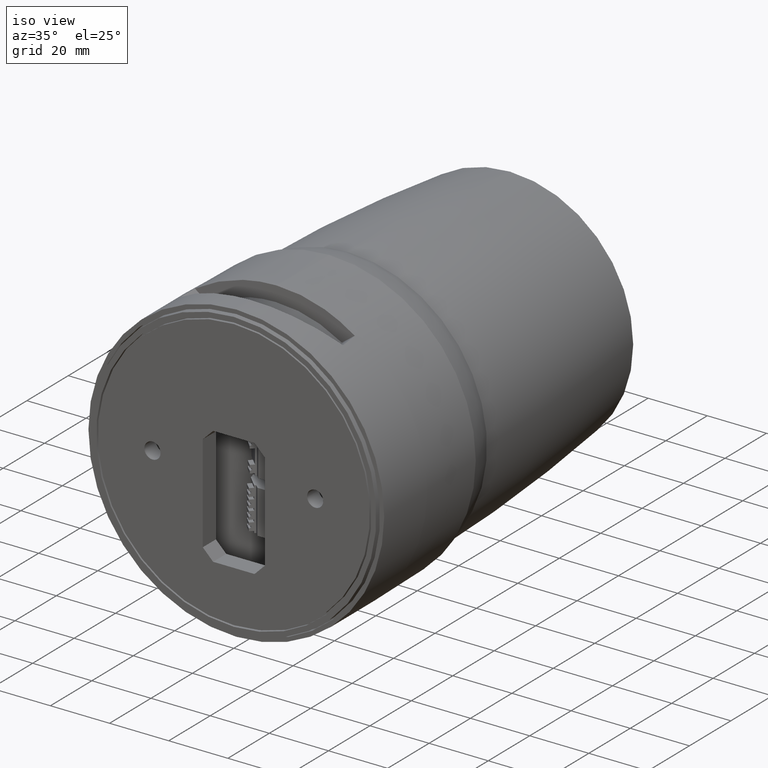
[diagram: clean part render]
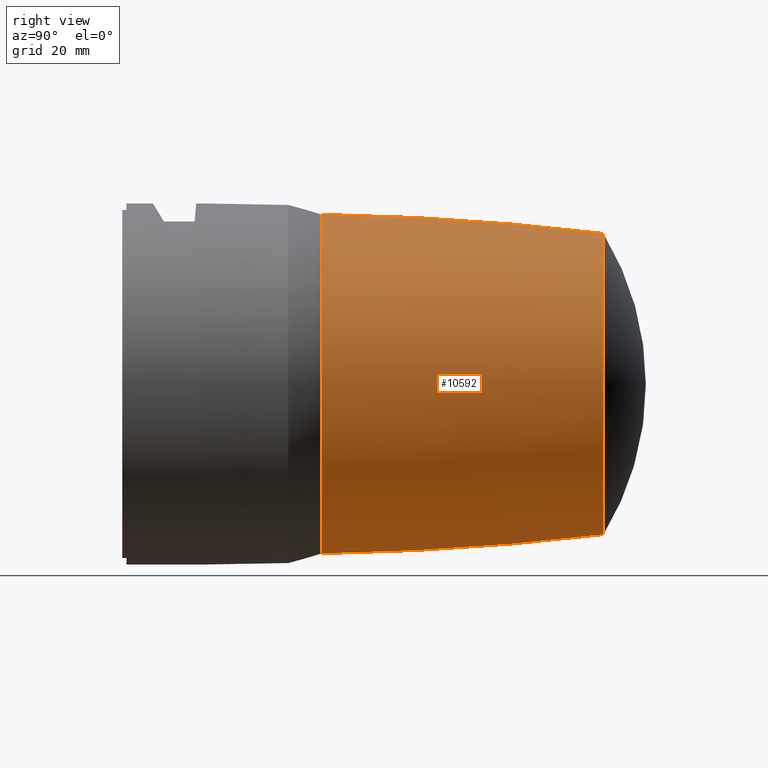
[diagram: tour spotlight — one face highlighted and labeled with its STEP entity id]
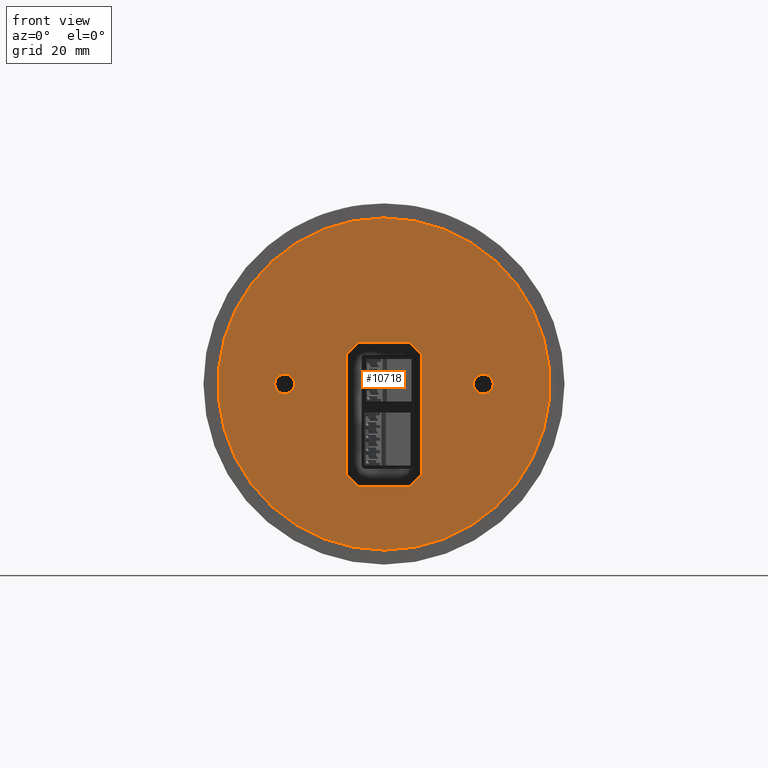
[diagram: tour spotlight — one face highlighted and labeled with its STEP entity id]
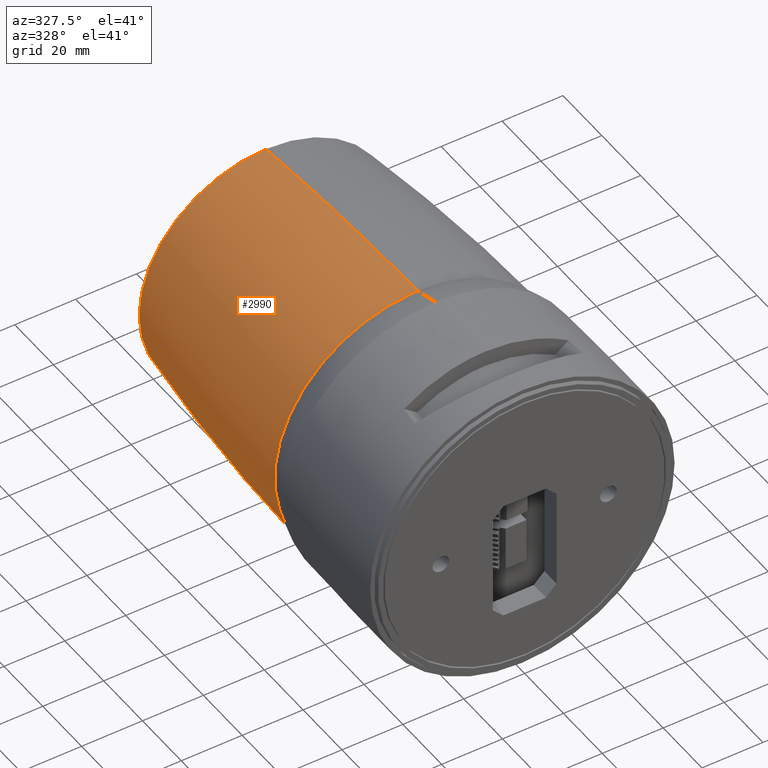
[diagram: tour spotlight — one face highlighted and labeled with its STEP entity id]
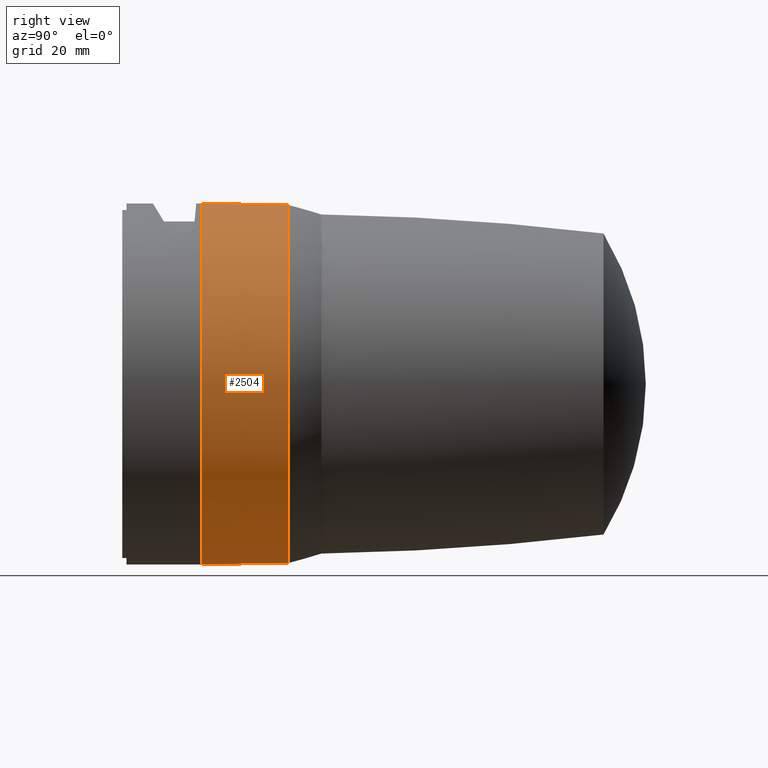
[diagram: tour spotlight — one face highlighted and labeled with its STEP entity id]
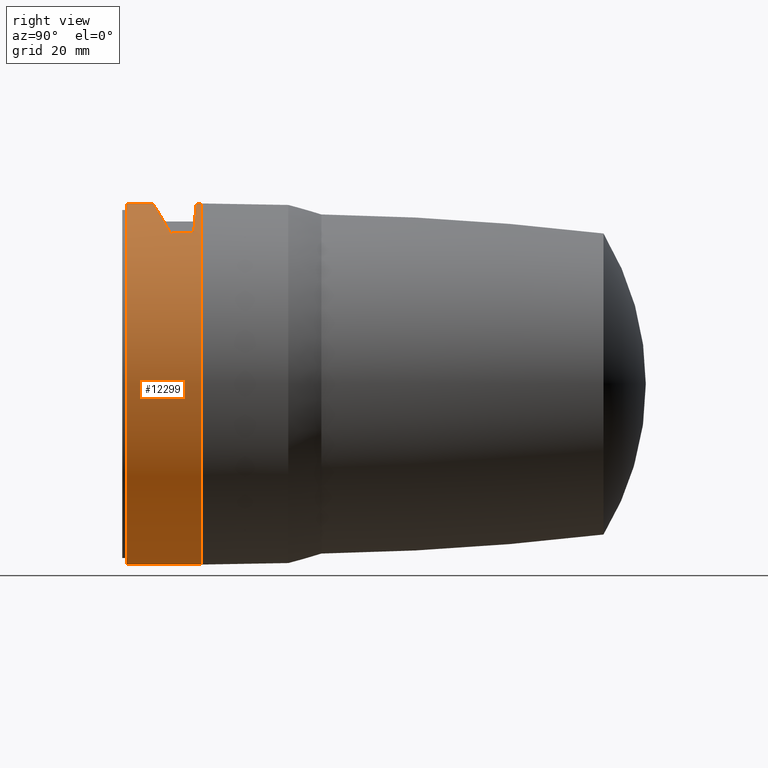
[diagram: tour spotlight — one face highlighted and labeled with its STEP entity id]
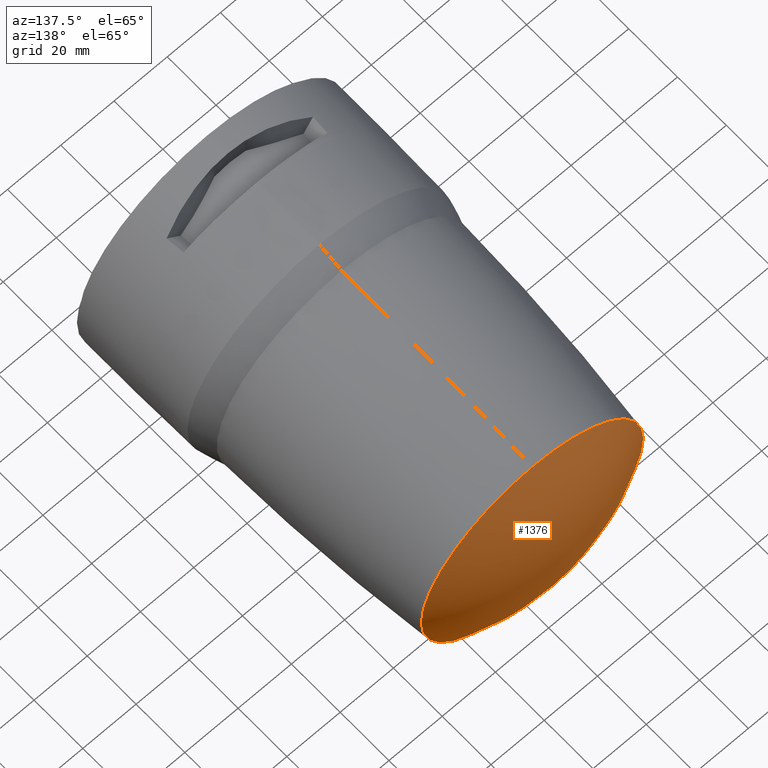
[diagram: tour spotlight — one face highlighted and labeled with its STEP entity id]
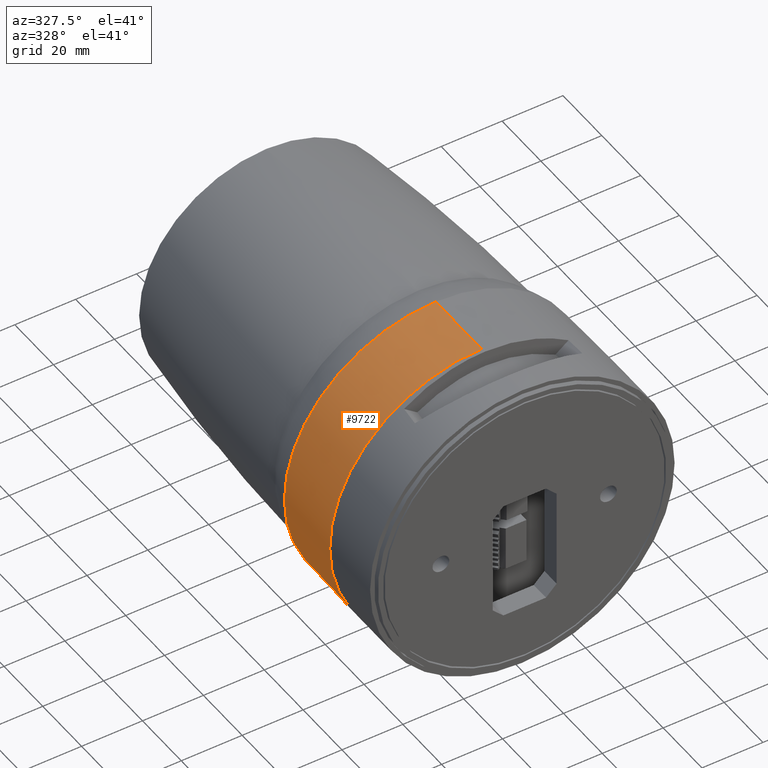
[diagram: tour spotlight — one face highlighted and labeled with its STEP entity id]
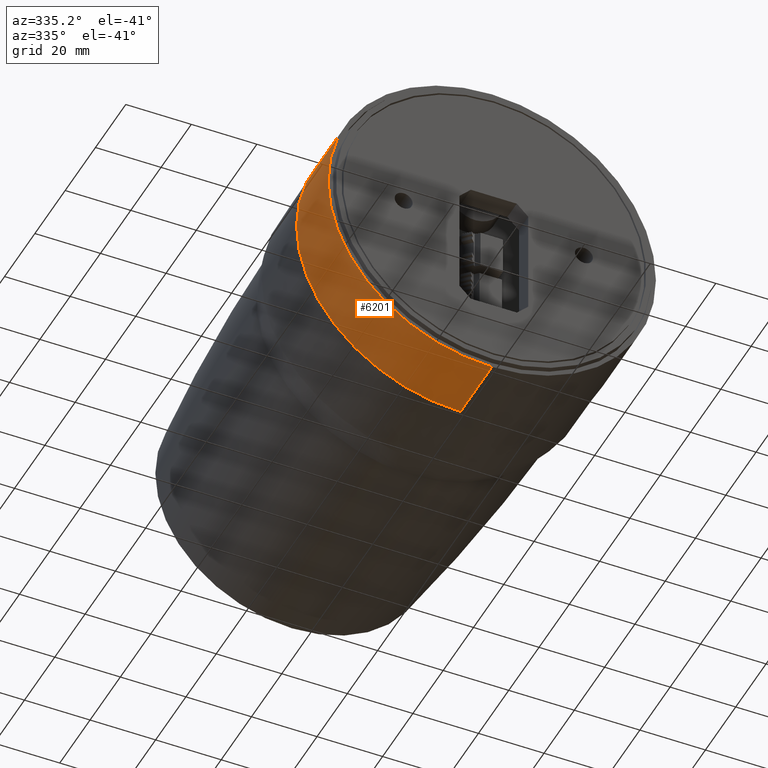
[diagram: tour spotlight — one face highlighted and labeled with its STEP entity id]
A machine part: a face-by-face anatomy tour. The part has 275 B-rep faces; the first image is the clean iso view, then the 8 largest visible faces are spotlighted one at a time (largest first), each with its STEP entity span.

Face 1 — right view, entity #10592. In plain terms, the highlighted toroidal blend (fillet) surface has major radius 712.949 mm and minor (blend) radius 760 mm.
Definition (entity closure, byte-faithful):
#1217 = EDGE_LOOP ( 'NONE', ( #10527, #1757, #11032, #6285 ) ) ;
#1334 = CIRCLE ( 'NONE', #4857, 46.95562754173349873 ) ;
#1419 = DIRECTION ( 'NONE',  ( -1.000000000000000000, 4.877267585892220197E-33, -1.224646799147353207E-16 ) ) ;
#1757 = ORIENTED_EDGE ( 'NONE', *, *, #11971, .F. ) ;
#2569 = VERTEX_POINT ( 'NONE', #10732 ) ;
#3329 = AXIS2_PLACEMENT_3D ( 'NONE', #11446, #10274, #5861 ) ;
#3922 = DIRECTION ( 'NONE',  ( 0.000000000000000000, 0.000000000000000000, -1.000000000000000000 ) ) ;
#4003 = CARTESIAN_POINT ( 'NONE',  ( -5.427486597387500927E-15, 133.2833406732575838, 41.68195516647119803 ) ) ;
#4073 = DIRECTION ( 'NONE',  ( 1.000000000000000000, -0.000000000000000000, 0.000000000000000000 ) ) ;
#4131 = CIRCLE ( 'NONE', #11846, 760.0000000000000000 ) ;
#4857 = AXIS2_PLACEMENT_3D ( 'NONE', #12350, #13590, #3922 ) ;
#5244 = DIRECTION ( 'NONE',  ( 0.000000000000000000, 0.000000000000000000, -1.000000000000000000 ) ) ;
#5335 = CARTESIAN_POINT ( 'NONE',  ( -7.512145455328849367E-44, 133.2833406732575838, 2.388266172796229845E-15 ) ) ;
#5609 = DIRECTION ( 'NONE',  ( 0.000000000000000000, 0.000000000000000000, -1.000000000000000000 ) ) ;
#5861 = DIRECTION ( 'NONE',  ( 0.000000000000000000, 3.982591216739360048E-17, -1.000000000000000000 ) ) ;
#6285 = ORIENTED_EDGE ( 'NONE', *, *, #13075, .T. ) ;
#6424 = CARTESIAN_POINT ( 'NONE',  ( -7.512145455328849367E-44, 55.14189884939369790, -46.95562754172874520 ) ) ;
#6836 = CIRCLE ( 'NONE', #8073, 41.68195516647119803 ) ;
#7165 = CARTESIAN_POINT ( 'NONE',  ( -5.750405897093344415E-15, 55.14189884939369790, 46.95562754172874520 ) ) ;
#8073 = AXIS2_PLACEMENT_3D ( 'NONE', #5335, #9681, #5609 ) ;
#8592 = DIRECTION ( 'NONE',  ( -1.224646799147353207E-16, 0.000000000000000000, 1.000000000000000000 ) ) ;
#8776 = EDGE_CURVE ( 'NONE', #9209, #2569, #10563, .T. ) ;
#8820 = VERTEX_POINT ( 'NONE', #4003 ) ;
#9209 = VERTEX_POINT ( 'NONE', #6424 ) ;
#9296 = FACE_OUTER_BOUND ( 'NONE', #1217, .T. ) ;
#9681 = DIRECTION ( 'NONE',  ( 0.000000000000000000, -1.000000000000000000, 0.000000000000000000 ) ) ;
#10198 = EDGE_CURVE ( 'NONE', #11914, #8820, #4131, .T. ) ;
#10274 = DIRECTION ( 'NONE',  ( 0.000000000000000000, 1.000000000000000000, 3.982591216739360048E-17 ) ) ;
#10527 = ORIENTED_EDGE ( 'NONE', *, *, #10198, .F. ) ;
#10563 = CIRCLE ( 'NONE', #12771, 760.0000000000000000 ) ;
#10592 = ADVANCED_FACE ( 'NONE', ( #9296 ), #13020, .T. ) ;
#10659 = CARTESIAN_POINT ( 'NONE',  ( 8.731107773697301526E-14, 43.10551928601617533, -712.9490543539769760 ) ) ;
#10732 = CARTESIAN_POINT ( 'NONE',  ( -7.512145455328849367E-44, 133.2833406732575838, -41.68195516647119803 ) ) ;
#11032 = ORIENTED_EDGE ( 'NONE', *, *, #8776, .T. ) ;
#11446 = CARTESIAN_POINT ( 'NONE',  ( -7.512145455328849367E-44, 43.10551928601614691, 5.925591757886349551E-16 ) ) ;
#11846 = AXIS2_PLACEMENT_3D ( 'NONE', #10659, #1419, #8592 ) ;
#11914 = VERTEX_POINT ( 'NONE', #7165 ) ;
#11971 = EDGE_CURVE ( 'NONE', #9209, #11914, #1334, .T. ) ;
#12292 = CARTESIAN_POINT ( 'NONE',  ( -7.512145455328849367E-44, 43.10551928601612559, 712.9490543539769760 ) ) ;
#12350 = CARTESIAN_POINT ( 'NONE',  ( -7.512145455328849367E-44, 55.14189884939369790, 5.925591757886349551E-16 ) ) ;
#12771 = AXIS2_PLACEMENT_3D ( 'NONE', #12292, #4073, #5244 ) ;
#13020 = TOROIDAL_SURFACE ( 'NONE', #3329, -712.9490543539769760, 760.0000000000000000 ) ;
#13075 = EDGE_CURVE ( 'NONE', #2569, #8820, #6836, .T. ) ;
#13590 = DIRECTION ( 'NONE',  ( 0.000000000000000000, -1.000000000000000000, 0.000000000000000000 ) ) ;

Face 2 — front view, entity #10718. In plain terms, the highlighted planar face has unit normal (-0, 1, 0).
Definition (entity closure, byte-faithful):
#110 = VECTOR ( 'NONE', #4788, 1000.000000000000000 ) ;
#190 = FACE_BOUND ( 'NONE', #13541, .T. ) ;
#216 = CARTESIAN_POINT ( 'NONE',  ( -17.75000000000000000, 0.000000000000000000, -17.75000000000000000 ) ) ;
#373 = ORIENTED_EDGE ( 'NONE', *, *, #672, .T. ) ;
#484 = DIRECTION ( 'NONE',  ( -1.301042606982603842E-16, 0.000000000000000000, -1.000000000000000000 ) ) ;
#672 = EDGE_CURVE ( 'NONE', #10770, #2728, #3118, .T. ) ;
#675 = AXIS2_PLACEMENT_3D ( 'NONE', #2542, #4466, #3644 ) ;
#736 = LINE ( 'NONE', #1574, #1745 ) ;
#840 = DIRECTION ( 'NONE',  ( 0.000000000000000000, 0.000000000000000000, 1.000000000000000000 ) ) ;
#866 = CIRCLE ( 'NONE', #7016, 46.00000000000000000 ) ;
#900 = EDGE_CURVE ( 'NONE', #2278, #1246, #11895, .T. ) ;
#933 = ORIENTED_EDGE ( 'NONE', *, *, #11626, .T. ) ;
#1026 = ORIENTED_EDGE ( 'NONE', *, *, #4496, .T. ) ;
#1096 = DIRECTION ( 'NONE',  ( 1.000000000000000000, 0.000000000000000000, 0.000000000000000000 ) ) ;
#1103 = ORIENTED_EDGE ( 'NONE', *, *, #10809, .T. ) ;
#1198 = ORIENTED_EDGE ( 'NONE', *, *, #4767, .T. ) ;
#1246 = VERTEX_POINT ( 'NONE', #4544 ) ;
#1414 = EDGE_CURVE ( 'NONE', #2728, #9483, #736, .T. ) ;
#1558 = VERTEX_POINT ( 'NONE', #3079 ) ;
#1574 = CARTESIAN_POINT ( 'NONE',  ( -10.50000000000000000, 0.000000000000000000, -28.50000000000000000 ) ) ;
#1745 = VECTOR ( 'NONE', #12192, 1000.000000000000000 ) ;
#1872 = DIRECTION ( 'NONE',  ( 0.000000000000000000, 1.000000000000000000, 0.000000000000000000 ) ) ;
#2075 = DIRECTION ( 'NONE',  ( 0.000000000000000000, 0.000000000000000000, 1.000000000000000000 ) ) ;
#2121 = FACE_BOUND ( 'NONE', #10347, .T. ) ;
#2141 = DIRECTION ( 'NONE',  ( 0.000000000000000000, 0.000000000000000000, 1.000000000000000000 ) ) ;
#2160 = EDGE_CURVE ( 'NONE', #1246, #2278, #866, .T. ) ;
#2278 = VERTEX_POINT ( 'NONE', #7953 ) ;
#2542 = CARTESIAN_POINT ( 'NONE',  ( -27.50000000000000000, 0.000000000000000000, 0.000000000000000000 ) ) ;
#2728 = VERTEX_POINT ( 'NONE', #12050 ) ;
#2798 = VECTOR ( 'NONE', #11448, 1000.000000000000000 ) ;
#2868 = CARTESIAN_POINT ( 'NONE',  ( -9.250000000000000000, 0.000000000000000000, 9.250000000000000000 ) ) ;
#2882 = CIRCLE ( 'NONE', #675, 2.750000000000000000 ) ;
#3079 = CARTESIAN_POINT ( 'NONE',  ( -27.50000000000000000, 0.000000000000000000, 2.750000000000000000 ) ) ;
#3107 = AXIS2_PLACEMENT_3D ( 'NONE', #11734, #10768, #2141 ) ;
#3118 = LINE ( 'NONE', #216, #4523 ) ;
#3269 = CARTESIAN_POINT ( 'NONE',  ( 0.000000000000000000, 0.000000000000000000, 0.000000000000000000 ) ) ;
#3369 = CARTESIAN_POINT ( 'NONE',  ( 0.000000000000000000, 0.000000000000000000, 0.000000000000000000 ) ) ;
#3486 = VERTEX_POINT ( 'NONE', #6676 ) ;
#3644 = DIRECTION ( 'NONE',  ( 0.000000000000000000, 0.000000000000000000, 1.000000000000000000 ) ) ;
#3712 = EDGE_CURVE ( 'NONE', #10452, #10610, #7423, .T. ) ;
#4109 = EDGE_CURVE ( 'NONE', #9483, #11961, #8102, .T. ) ;
#4466 = DIRECTION ( 'NONE',  ( 0.000000000000000000, 1.000000000000000000, 0.000000000000000000 ) ) ;
#4496 = EDGE_CURVE ( 'NONE', #7479, #4986, #8987, .T. ) ;
#4523 = VECTOR ( 'NONE', #8640, 1000.000000000000114 ) ;
#4544 = CARTESIAN_POINT ( 'NONE',  ( 0.000000000000000000, 0.000000000000000000, -46.00000000000000000 ) ) ;
#4745 = VECTOR ( 'NONE', #5699, 1000.000000000000114 ) ;
#4767 = EDGE_CURVE ( 'NONE', #10610, #10770, #7625, .T. ) ;
#4788 = DIRECTION ( 'NONE',  ( 0.7071067811865435759, 0.000000000000000000, -0.7071067811865515695 ) ) ;
#4862 = AXIS2_PLACEMENT_3D ( 'NONE', #3369, #10538, #1096 ) ;
#4886 = ORIENTED_EDGE ( 'NONE', *, *, #13422, .T. ) ;
#4986 = VERTEX_POINT ( 'NONE', #5697 ) ;
#5188 = CARTESIAN_POINT ( 'NONE',  ( 27.50000000000000000, 0.000000000000000000, 0.000000000000000000 ) ) ;
#5309 = AXIS2_PLACEMENT_3D ( 'NONE', #5188, #7318, #2075 ) ;
#5488 = DIRECTION ( 'NONE',  ( -1.000000000000000000, 0.000000000000000000, 0.000000000000000000 ) ) ;
#5533 = CARTESIAN_POINT ( 'NONE',  ( -10.50000000000000000, 0.000000000000000000, 8.000000000000000000 ) ) ;
#5697 = CARTESIAN_POINT ( 'NONE',  ( 10.50000000000000000, 0.000000000000000000, 8.000000000000000000 ) ) ;
#5699 = DIRECTION ( 'NONE',  ( 0.7071067811865505703, 0.000000000000000000, 0.7071067811865444641 ) ) ;
#5732 = ORIENTED_EDGE ( 'NONE', *, *, #1414, .T. ) ;
#5939 = AXIS2_PLACEMENT_3D ( 'NONE', #13253, #7096, #11119 ) ;
#5983 = ORIENTED_EDGE ( 'NONE', *, *, #3712, .T. ) ;
#6132 = CARTESIAN_POINT ( 'NONE',  ( -10.50000000000000000, 0.000000000000000000, 11.50000000000000000 ) ) ;
#6260 = CARTESIAN_POINT ( 'NONE',  ( 7.000000000000000000, 0.000000000000000000, -28.50000000000000000 ) ) ;
#6327 = PLANE ( 'NONE',  #4862 ) ;
#6402 = ORIENTED_EDGE ( 'NONE', *, *, #4109, .T. ) ;
#6495 = VECTOR ( 'NONE', #5488, 1000.000000000000000 ) ;
#6676 = CARTESIAN_POINT ( 'NONE',  ( -27.50000000000000000, 0.000000000000000000, -2.750000000000000000 ) ) ;
#6697 = VECTOR ( 'NONE', #12405, 1000.000000000000114 ) ;
#6843 = ORIENTED_EDGE ( 'NONE', *, *, #11581, .T. ) ;
#7016 = AXIS2_PLACEMENT_3D ( 'NONE', #3269, #8658, #12864 ) ;
#7096 = DIRECTION ( 'NONE',  ( 0.000000000000000000, -1.000000000000000000, 0.000000000000000000 ) ) ;
#7232 = LINE ( 'NONE', #6132, #2798 ) ;
#7318 = DIRECTION ( 'NONE',  ( 0.000000000000000000, 1.000000000000000000, 0.000000000000000000 ) ) ;
#7423 = LINE ( 'NONE', #10531, #6697 ) ;
#7460 = VECTOR ( 'NONE', #484, 1000.000000000000000 ) ;
#7479 = VERTEX_POINT ( 'NONE', #9591 ) ;
#7625 = LINE ( 'NONE', #12670, #6495 ) ;
#7953 = CARTESIAN_POINT ( 'NONE',  ( 5.633375276077824704E-15, 0.000000000000000000, 46.00000000000000000 ) ) ;
#8001 = EDGE_CURVE ( 'NONE', #4986, #10452, #9929, .T. ) ;
#8102 = LINE ( 'NONE', #2868, #4745 ) ;
#8558 = ORIENTED_EDGE ( 'NONE', *, *, #2160, .T. ) ;
#8613 = FACE_OUTER_BOUND ( 'NONE', #9321, .T. ) ;
#8640 = DIRECTION ( 'NONE',  ( -0.7071067811865444641, 0.000000000000000000, 0.7071067811865505703 ) ) ;
#8658 = DIRECTION ( 'NONE',  ( 0.000000000000000000, -1.000000000000000000, 0.000000000000000000 ) ) ;
#8847 = CIRCLE ( 'NONE', #11266, 2.750000000000000000 ) ;
#8870 = ORIENTED_EDGE ( 'NONE', *, *, #11423, .T. ) ;
#8987 = LINE ( 'NONE', #10367, #110 ) ;
#9052 = VERTEX_POINT ( 'NONE', #9263 ) ;
#9168 = EDGE_LOOP ( 'NONE', ( #933, #1103 ) ) ;
#9263 = CARTESIAN_POINT ( 'NONE',  ( 27.50000000000000000, 0.000000000000000000, 2.750000000000000000 ) ) ;
#9321 = EDGE_LOOP ( 'NONE', ( #8558, #9475 ) ) ;
#9385 = VERTEX_POINT ( 'NONE', #11955 ) ;
#9475 = ORIENTED_EDGE ( 'NONE', *, *, #900, .T. ) ;
#9483 = VERTEX_POINT ( 'NONE', #5533 ) ;
#9591 = CARTESIAN_POINT ( 'NONE',  ( 7.000000000000000000, 0.000000000000000000, 11.50000000000000000 ) ) ;
#9929 = LINE ( 'NONE', #12140, #7460 ) ;
#10347 = EDGE_LOOP ( 'NONE', ( #8870, #6843 ) ) ;
#10367 = CARTESIAN_POINT ( 'NONE',  ( 9.250000000000000000, 0.000000000000000000, 9.250000000000000000 ) ) ;
#10452 = VERTEX_POINT ( 'NONE', #12414 ) ;
#10531 = CARTESIAN_POINT ( 'NONE',  ( 17.75000000000000000, 0.000000000000000000, -17.75000000000000000 ) ) ;
#10538 = DIRECTION ( 'NONE',  ( -0.000000000000000000, 1.000000000000000000, 0.000000000000000000 ) ) ;
#10610 = VERTEX_POINT ( 'NONE', #6260 ) ;
#10718 = ADVANCED_FACE ( 'NONE', ( #190, #12816, #2121, #8613 ), #6327, .F. ) ;
#10768 = DIRECTION ( 'NONE',  ( 0.000000000000000000, 1.000000000000000000, 0.000000000000000000 ) ) ;
#10770 = VERTEX_POINT ( 'NONE', #11776 ) ;
#10809 = EDGE_CURVE ( 'NONE', #3486, #1558, #2882, .T. ) ;
#11119 = DIRECTION ( 'NONE',  ( 0.000000000000000000, 0.000000000000000000, -1.000000000000000000 ) ) ;
#11266 = AXIS2_PLACEMENT_3D ( 'NONE', #13470, #1872, #840 ) ;
#11423 = EDGE_CURVE ( 'NONE', #9052, #9385, #8847, .T. ) ;
#11448 = DIRECTION ( 'NONE',  ( 1.000000000000000000, 0.000000000000000000, 0.000000000000000000 ) ) ;
#11581 = EDGE_CURVE ( 'NONE', #9385, #9052, #12372, .T. ) ;
#11626 = EDGE_CURVE ( 'NONE', #1558, #3486, #13473, .T. ) ;
#11734 = CARTESIAN_POINT ( 'NONE',  ( -27.50000000000000000, 0.000000000000000000, 0.000000000000000000 ) ) ;
#11776 = CARTESIAN_POINT ( 'NONE',  ( -7.000000000000000000, 0.000000000000000000, -28.50000000000000000 ) ) ;
#11895 = CIRCLE ( 'NONE', #5939, 46.00000000000000000 ) ;
#11955 = CARTESIAN_POINT ( 'NONE',  ( 27.50000000000000000, 0.000000000000000000, -2.750000000000000000 ) ) ;
#11961 = VERTEX_POINT ( 'NONE', #13382 ) ;
#12050 = CARTESIAN_POINT ( 'NONE',  ( -10.50000000000000000, 0.000000000000000000, -25.00000000000000000 ) ) ;
#12140 = CARTESIAN_POINT ( 'NONE',  ( 10.50000000000000000, 0.000000000000000000, -28.50000000000000000 ) ) ;
#12192 = DIRECTION ( 'NONE',  ( -1.301042606982603842E-16, 0.000000000000000000, 1.000000000000000000 ) ) ;
#12372 = CIRCLE ( 'NONE', #5309, 2.750000000000000000 ) ;
#12405 = DIRECTION ( 'NONE',  ( -0.7071067811865505703, 0.000000000000000000, -0.7071067811865444641 ) ) ;
#12414 = CARTESIAN_POINT ( 'NONE',  ( 10.50000000000000000, 0.000000000000000000, -25.00000000000000000 ) ) ;
#12670 = CARTESIAN_POINT ( 'NONE',  ( -10.50000000000000000, 0.000000000000000000, -28.50000000000000000 ) ) ;
#12816 = FACE_BOUND ( 'NONE', #9168, .T. ) ;
#12864 = DIRECTION ( 'NONE',  ( 0.000000000000000000, 0.000000000000000000, -1.000000000000000000 ) ) ;
#13253 = CARTESIAN_POINT ( 'NONE',  ( 0.000000000000000000, 0.000000000000000000, 0.000000000000000000 ) ) ;
#13382 = CARTESIAN_POINT ( 'NONE',  ( -7.000000000000000000, 0.000000000000000000, 11.50000000000000000 ) ) ;
#13422 = EDGE_CURVE ( 'NONE', #11961, #7479, #7232, .T. ) ;
#13453 = ORIENTED_EDGE ( 'NONE', *, *, #8001, .T. ) ;
#13470 = CARTESIAN_POINT ( 'NONE',  ( 27.50000000000000000, 0.000000000000000000, 0.000000000000000000 ) ) ;
#13473 = CIRCLE ( 'NONE', #3107, 2.750000000000000000 ) ;
#13541 = EDGE_LOOP ( 'NONE', ( #13453, #5983, #1198, #373, #5732, #6402, #4886, #1026 ) ) ;

Face 3 — auxiliary view, entity #2990. In plain terms, the highlighted toroidal blend (fillet) surface has major radius 712.949 mm and minor (blend) radius 760 mm.
Definition (entity closure, byte-faithful):
#335 = CIRCLE ( 'NONE', #8038, 41.68195516647119803 ) ;
#791 = EDGE_CURVE ( 'NONE', #8820, #2569, #335, .T. ) ;
#983 = CARTESIAN_POINT ( 'NONE',  ( -7.512145455328849367E-44, 43.10551928601614691, 5.925591757886349551E-16 ) ) ;
#1419 = DIRECTION ( 'NONE',  ( -1.000000000000000000, 4.877267585892220197E-33, -1.224646799147353207E-16 ) ) ;
#2569 = VERTEX_POINT ( 'NONE', #10732 ) ;
#2990 = ADVANCED_FACE ( 'NONE', ( #10568 ), #9767, .T. ) ;
#3047 = CARTESIAN_POINT ( 'NONE',  ( -7.512145455328849367E-44, 55.14189884939369790, 5.925591757886349551E-16 ) ) ;
#3826 = AXIS2_PLACEMENT_3D ( 'NONE', #983, #6224, #5394 ) ;
#4003 = CARTESIAN_POINT ( 'NONE',  ( -5.427486597387500927E-15, 133.2833406732575838, 41.68195516647119803 ) ) ;
#4073 = DIRECTION ( 'NONE',  ( 1.000000000000000000, -0.000000000000000000, 0.000000000000000000 ) ) ;
#4131 = CIRCLE ( 'NONE', #11846, 760.0000000000000000 ) ;
#5244 = DIRECTION ( 'NONE',  ( 0.000000000000000000, 0.000000000000000000, -1.000000000000000000 ) ) ;
#5394 = DIRECTION ( 'NONE',  ( 0.000000000000000000, 3.982591216739360048E-17, -1.000000000000000000 ) ) ;
#5661 = DIRECTION ( 'NONE',  ( 0.000000000000000000, 0.000000000000000000, -1.000000000000000000 ) ) ;
#6082 = DIRECTION ( 'NONE',  ( 0.000000000000000000, -1.000000000000000000, 0.000000000000000000 ) ) ;
#6224 = DIRECTION ( 'NONE',  ( 0.000000000000000000, 1.000000000000000000, 3.982591216739360048E-17 ) ) ;
#6424 = CARTESIAN_POINT ( 'NONE',  ( -7.512145455328849367E-44, 55.14189884939369790, -46.95562754172874520 ) ) ;
#6552 = CARTESIAN_POINT ( 'NONE',  ( -7.512145455328849367E-44, 133.2833406732575838, 2.388266172796229845E-15 ) ) ;
#7165 = CARTESIAN_POINT ( 'NONE',  ( -5.750405897093344415E-15, 55.14189884939369790, 46.95562754172874520 ) ) ;
#7181 = EDGE_LOOP ( 'NONE', ( #7406, #12159, #12106, #9231 ) ) ;
#7406 = ORIENTED_EDGE ( 'NONE', *, *, #13225, .F. ) ;
#7803 = DIRECTION ( 'NONE',  ( 0.000000000000000000, -1.000000000000000000, 0.000000000000000000 ) ) ;
#8038 = AXIS2_PLACEMENT_3D ( 'NONE', #6552, #7803, #5661 ) ;
#8592 = DIRECTION ( 'NONE',  ( -1.224646799147353207E-16, 0.000000000000000000, 1.000000000000000000 ) ) ;
#8776 = EDGE_CURVE ( 'NONE', #9209, #2569, #10563, .T. ) ;
#8820 = VERTEX_POINT ( 'NONE', #4003 ) ;
#9209 = VERTEX_POINT ( 'NONE', #6424 ) ;
#9231 = ORIENTED_EDGE ( 'NONE', *, *, #8776, .F. ) ;
#9767 = TOROIDAL_SURFACE ( 'NONE', #3826, -712.9490543539769760, 760.0000000000000000 ) ;
#10198 = EDGE_CURVE ( 'NONE', #11914, #8820, #4131, .T. ) ;
#10563 = CIRCLE ( 'NONE', #12771, 760.0000000000000000 ) ;
#10568 = FACE_OUTER_BOUND ( 'NONE', #7181, .T. ) ;
#10659 = CARTESIAN_POINT ( 'NONE',  ( 8.731107773697301526E-14, 43.10551928601617533, -712.9490543539769760 ) ) ;
#10732 = CARTESIAN_POINT ( 'NONE',  ( -7.512145455328849367E-44, 133.2833406732575838, -41.68195516647119803 ) ) ;
#11830 = AXIS2_PLACEMENT_3D ( 'NONE', #3047, #6082, #12436 ) ;
#11846 = AXIS2_PLACEMENT_3D ( 'NONE', #10659, #1419, #8592 ) ;
#11914 = VERTEX_POINT ( 'NONE', #7165 ) ;
#12106 = ORIENTED_EDGE ( 'NONE', *, *, #791, .T. ) ;
#12159 = ORIENTED_EDGE ( 'NONE', *, *, #10198, .T. ) ;
#12292 = CARTESIAN_POINT ( 'NONE',  ( -7.512145455328849367E-44, 43.10551928601612559, 712.9490543539769760 ) ) ;
#12436 = DIRECTION ( 'NONE',  ( 0.000000000000000000, 0.000000000000000000, -1.000000000000000000 ) ) ;
#12714 = CIRCLE ( 'NONE', #11830, 46.95562754173349873 ) ;
#12771 = AXIS2_PLACEMENT_3D ( 'NONE', #12292, #4073, #5244 ) ;
#13225 = EDGE_CURVE ( 'NONE', #11914, #9209, #12714, .T. ) ;

Face 4 — right view, entity #2504. In plain terms, the highlighted conical surface has half-angle 1 deg.
Definition (entity closure, byte-faithful):
#20 = CIRCLE ( 'NONE', #5528, 50.00000000000000000 ) ;
#1092 = CIRCLE ( 'NONE', #1306, 49.58107844172399581 ) ;
#1146 = DIRECTION ( 'NONE',  ( 0.000000000000000000, 6.938893903907228378E-17, -1.000000000000000000 ) ) ;
#1282 = FACE_OUTER_BOUND ( 'NONE', #12435, .T. ) ;
#1306 = AXIS2_PLACEMENT_3D ( 'NONE', #12264, #3782, #3971 ) ;
#1315 = EDGE_CURVE ( 'NONE', #7879, #5713, #1092, .T. ) ;
#2236 = CARTESIAN_POINT ( 'NONE',  ( -6.123233995736766085E-15, 22.00000000000000000, -50.00000000000000000 ) ) ;
#2260 = VECTOR ( 'NONE', #3706, 1000.000000000000000 ) ;
#2504 = ADVANCED_FACE ( 'NONE', ( #1282 ), #3510, .T. ) ;
#2675 = CARTESIAN_POINT ( 'NONE',  ( 6.123233995736766085E-15, 21.99999999999999645, 50.00000000000000000 ) ) ;
#2846 = CARTESIAN_POINT ( 'NONE',  ( -4.592996408837750682E-44, 22.00000000000000000, 50.00000000000000000 ) ) ;
#3510 = CONICAL_SURFACE ( 'NONE', #8124, 50.00000000000000000, 0.01745329251994153993 ) ;
#3706 = DIRECTION ( 'NONE',  ( 2.137303368083576378E-18, -0.9998476951563912696, 0.01745240643728168672 ) ) ;
#3740 = CARTESIAN_POINT ( 'NONE',  ( -7.512145455328849367E-44, 45.99999999992949995, -49.58107844173265022 ) ) ;
#3782 = DIRECTION ( 'NONE',  ( 0.000000000000000000, 1.000000000000000000, 0.000000000000000000 ) ) ;
#3971 = DIRECTION ( 'NONE',  ( 0.000000000000000000, 0.000000000000000000, -1.000000000000000000 ) ) ;
#4386 = CARTESIAN_POINT ( 'NONE',  ( -7.512145455328849367E-44, 22.00000000000000000, 5.925591757886359411E-16 ) ) ;
#4398 = DIRECTION ( 'NONE',  ( -2.565214412803580007E-45, 1.000000000000000000, 0.000000000000000000 ) ) ;
#5323 = ORIENTED_EDGE ( 'NONE', *, *, #6263, .T. ) ;
#5528 = AXIS2_PLACEMENT_3D ( 'NONE', #12614, #4398, #12550 ) ;
#5713 = VERTEX_POINT ( 'NONE', #3740 ) ;
#5767 = ORIENTED_EDGE ( 'NONE', *, *, #1315, .F. ) ;
#6263 = EDGE_CURVE ( 'NONE', #7879, #11535, #11019, .T. ) ;
#6693 = VERTEX_POINT ( 'NONE', #2236 ) ;
#7023 = LINE ( 'NONE', #13251, #7250 ) ;
#7250 = VECTOR ( 'NONE', #10140, 1000.000000000000000 ) ;
#7599 = EDGE_CURVE ( 'NONE', #5713, #6693, #7023, .T. ) ;
#7766 = ORIENTED_EDGE ( 'NONE', *, *, #7599, .F. ) ;
#7879 = VERTEX_POINT ( 'NONE', #11038 ) ;
#8124 = AXIS2_PLACEMENT_3D ( 'NONE', #4386, #8671, #1146 ) ;
#8521 = ORIENTED_EDGE ( 'NONE', *, *, #10640, .T. ) ;
#8671 = DIRECTION ( 'NONE',  ( 0.000000000000000000, -1.000000000000000000, -6.938893903907229610E-17 ) ) ;
#10140 = DIRECTION ( 'NONE',  ( 0.000000000000000000, -0.9998476951563912696, -0.01745240643728182550 ) ) ;
#10640 = EDGE_CURVE ( 'NONE', #11535, #6693, #20, .T. ) ;
#11019 = LINE ( 'NONE', #2675, #2260 ) ;
#11038 = CARTESIAN_POINT ( 'NONE',  ( -6.071930901194174360E-15, 45.99999999992949995, 49.58107844173265022 ) ) ;
#11535 = VERTEX_POINT ( 'NONE', #2846 ) ;
#12264 = CARTESIAN_POINT ( 'NONE',  ( -7.512145455328849367E-44, 45.99999999992949995, 2.608533618546749738E-15 ) ) ;
#12435 = EDGE_LOOP ( 'NONE', ( #5767, #5323, #8521, #7766 ) ) ;
#12550 = DIRECTION ( 'NONE',  ( 0.000000000000000000, 0.000000000000000000, -1.000000000000000000 ) ) ;
#12614 = CARTESIAN_POINT ( 'NONE',  ( -4.592996408837750682E-44, 22.00000000000000000, 5.925591757886279539E-16 ) ) ;
#13251 = CARTESIAN_POINT ( 'NONE',  ( -7.512145455328849367E-44, 22.00000000000000355, -50.00000000000000000 ) ) ;

Face 5 — right view, entity #12299. In plain terms, the highlighted cylindrical surface (partial cylindrical patch) has radius 50 mm, axis along (0, -1, 0).
Definition (entity closure, byte-faithful):
#20 = CIRCLE ( 'NONE', #5528, 50.00000000000000000 ) ;
#49 = CARTESIAN_POINT ( 'NONE',  ( 6.920106442890689991, 8.801323378074378923, 49.51884112301280538 ) ) ;
#63 = CARTESIAN_POINT ( 'NONE',  ( 27.00000000000000000, 19.80000000000000071, 42.08325082500169856 ) ) ;
#86 = ORIENTED_EDGE ( 'NONE', *, *, #2848, .T. ) ;
#88 = CARTESIAN_POINT ( 'NONE',  ( -4.592996408837750682E-44, 5.200000000000000178, 50.00000000000000000 ) ) ;
#97 = ORIENTED_EDGE ( 'NONE', *, *, #2324, .F. ) ;
#194 = CARTESIAN_POINT ( 'NONE',  ( 6.051508578141631567, 8.730410859832064219, 49.63228251886658171 ) ) ;
#372 = CARTESIAN_POINT ( 'NONE',  ( 20.67052682476433034, 20.08961501861153920, 45.52724122553401287 ) ) ;
#397 = EDGE_CURVE ( 'NONE', #8838, #4083, #8608, .T. ) ;
#544 = VERTEX_POINT ( 'NONE', #10363 ) ;
#826 = ORIENTED_EDGE ( 'NONE', *, *, #5122, .F. ) ;
#838 = CARTESIAN_POINT ( 'NONE',  ( 12.80377343119045896, 9.536399202351960369, 48.33282992493039387 ) ) ;
#1043 = CARTESIAN_POINT ( 'NONE',  ( -5.764392301772019945E-12, 20.49999382469569653, 50.00000000000000000 ) ) ;
#1068 = VERTEX_POINT ( 'NONE', #11377 ) ;
#1340 = CARTESIAN_POINT ( 'NONE',  ( 22.73826346693368095, 20.00740048634699164, 44.58652059235162568 ) ) ;
#1407 = CARTESIAN_POINT ( 'NONE',  ( 13.92611652604206363, 20.31387460506027409, 48.02151407747271605 ) ) ;
#1476 = CARTESIAN_POINT ( 'NONE',  ( 9.358452127844524071, 20.41705352274205509, 49.13111300057723696 ) ) ;
#1503 = DIRECTION ( 'NONE',  ( 1.000000000000000000, 0.000000000000000000, 0.000000000000000000 ) ) ;
#1629 = VERTEX_POINT ( 'NONE', #2529 ) ;
#1644 = ORIENTED_EDGE ( 'NONE', *, *, #4499, .F. ) ;
#1874 = VERTEX_POINT ( 'NONE', #9068 ) ;
#2193 = ORIENTED_EDGE ( 'NONE', *, *, #5788, .F. ) ;
#2217 = DIRECTION ( 'NONE',  ( 0.000000000000000000, -1.000000000000000000, 0.000000000000000000 ) ) ;
#2236 = CARTESIAN_POINT ( 'NONE',  ( -6.123233995736766085E-15, 22.00000000000000000, -50.00000000000000000 ) ) ;
#2324 = EDGE_CURVE ( 'NONE', #1629, #11013, #2954, .T. ) ;
#2462 = VERTEX_POINT ( 'NONE', #5417 ) ;
#2514 = CARTESIAN_POINT ( 'NONE',  ( 4.654760700971499965, 20.48418902844604261, 49.83944890843109476 ) ) ;
#2529 = CARTESIAN_POINT ( 'NONE',  ( 6.184516031011409787, 8.740610600473400993, 49.61604895364309442 ) ) ;
#2651 = CARTESIAN_POINT ( 'NONE',  ( 14.03708297128922489, 20.31089095427871172, 47.98917184013750159 ) ) ;
#2715 = CARTESIAN_POINT ( 'NONE',  ( 20.63535800954394617, 20.09100979772223639, 45.54319238524256974 ) ) ;
#2736 = B_SPLINE_CURVE_WITH_KNOTS ( 'NONE', 3,
 ( #4468, #6262, #4194, #63 ),
 .UNSPECIFIED., .F., .F.,
 ( 4, 4 ),
 ( 0.000000000000000000, 1.000000000000000000 ),
 .UNSPECIFIED. ) ;
#2743 = CARTESIAN_POINT ( 'NONE',  ( 8.898745255557141576, 8.973573626464784070, 49.24231659851892573 ) ) ;
#2750 = ORIENTED_EDGE ( 'NONE', *, *, #13244, .F. ) ;
#2803 = CARTESIAN_POINT ( 'NONE',  ( 13.76038150259407900, 9.698331024446268600, 48.06923369406560198 ) ) ;
#2835 = CARTESIAN_POINT ( 'NONE',  ( 19.66594094901325107, 10.96703308332192073, 45.97005191715610550 ) ) ;
#2846 = CARTESIAN_POINT ( 'NONE',  ( -4.592996408837750682E-44, 22.00000000000000000, 50.00000000000000000 ) ) ;
#2848 = EDGE_CURVE ( 'NONE', #2462, #12353, #8098, .T. ) ;
#2851 = CARTESIAN_POINT ( 'NONE',  ( 20.14607029514280967, 11.08946853237245911, 45.76457362126449624 ) ) ;
#2872 = CARTESIAN_POINT ( 'NONE',  ( -6.123233995736766085E-15, 1.199999999999999956, -50.00000000000000000 ) ) ;
#2954 = B_SPLINE_CURVE_WITH_KNOTS ( 'NONE', 3,
 ( #12536, #5016, #6118, #49 ),
 .UNSPECIFIED., .F., .F.,
 ( 4, 4 ),
 ( 0.000000000000000000, 1.000000000000000000 ),
 .UNSPECIFIED. ) ;
#3246 = ORIENTED_EDGE ( 'NONE', *, *, #10640, .F. ) ;
#3278 = B_SPLINE_CURVE_WITH_KNOTS ( 'NONE', 3,
 ( #5846, #2743, #8182, #7144 ),
 .UNSPECIFIED., .F., .F.,
 ( 4, 4 ),
 ( 0.000000000000000000, 1.000000000000000000 ),
 .UNSPECIFIED. ) ;
#3478 = LINE ( 'NONE', #6431, #3892 ) ;
#3498 = CARTESIAN_POINT ( 'NONE',  ( 21.09644184224700325, 11.34596991605413940, 45.33140451302350016 ) ) ;
#3683 = CARTESIAN_POINT ( 'NONE',  ( 11.70982105626885783, 20.36867883447054695, 48.61323431297248021 ) ) ;
#3752 = CARTESIAN_POINT ( 'NONE',  ( 19.66594094901325107, 10.96703308332192073, 45.97005191715610550 ) ) ;
#3790 = DIRECTION ( 'NONE',  ( 0.000000000000000000, 0.000000000000000000, 1.000000000000000000 ) ) ;
#3892 = VECTOR ( 'NONE', #10648, 1000.000000000000000 ) ;
#3940 = CARTESIAN_POINT ( 'NONE',  ( 13.12318043328606976, 9.588462154140014349, 48.24820120128043754 ) ) ;
#3961 = CARTESIAN_POINT ( 'NONE',  ( 5.984983876245320467, 8.725298833855209324, 49.64047782912679452 ) ) ;
#4053 = DIRECTION ( 'NONE',  ( 0.000000000000000000, -1.000000000000000000, 0.000000000000000000 ) ) ;
#4063 = VERTEX_POINT ( 'NONE', #2803 ) ;
#4083 = VERTEX_POINT ( 'NONE', #10946 ) ;
#4194 = CARTESIAN_POINT ( 'NONE',  ( 27.33250528821950098, 17.68495468788017888, 41.86992029090482959 ) ) ;
#4398 = DIRECTION ( 'NONE',  ( -2.565214412803580007E-45, 1.000000000000000000, 0.000000000000000000 ) ) ;
#4468 = CARTESIAN_POINT ( 'NONE',  ( 27.49999999257709860, 13.40000002137574064, 41.75823274695079590 ) ) ;
#4499 = EDGE_CURVE ( 'NONE', #1068, #6180, #7032, .T. ) ;
#4652 = CARTESIAN_POINT ( 'NONE',  ( 12.58997112525289097, 20.34794711267031175, 48.38991880495099451 ) ) ;
#4769 = EDGE_LOOP ( 'NONE', ( #10099, #3246, #9080, #12235, #5027, #826, #1644, #2193, #2750, #11679, #97, #11260, #10707, #86, #5374 ) ) ;
#4786 = CARTESIAN_POINT ( 'NONE',  ( 19.30161354799291828, 20.14222990923724055, 46.12525603875049995 ) ) ;
#5016 = CARTESIAN_POINT ( 'NONE',  ( 6.430029252866702016, 8.759783581802256691, 49.58548126325304395 ) ) ;
#5027 = ORIENTED_EDGE ( 'NONE', *, *, #13511, .F. ) ;
#5097 = VERTEX_POINT ( 'NONE', #11983 ) ;
#5107 = CARTESIAN_POINT ( 'NONE',  ( 15.76372947496187216, 10.04999647161790222, 47.49579476905638131 ) ) ;
#5122 = EDGE_CURVE ( 'NONE', #6180, #544, #10315, .T. ) ;
#5327 = EDGE_CURVE ( 'NONE', #2462, #5097, #8643, .T. ) ;
#5374 = ORIENTED_EDGE ( 'NONE', *, *, #10773, .F. ) ;
#5417 = CARTESIAN_POINT ( 'NONE',  ( 6.083814143654010213E-16, 8.500003069107171072, 50.00000000000000000 ) ) ;
#5528 = AXIS2_PLACEMENT_3D ( 'NONE', #12614, #4398, #12550 ) ;
#5543 = CARTESIAN_POINT ( 'NONE',  ( 24.85440284641997266, 19.91132801527134788, 43.45983466800272765 ) ) ;
#5612 = CARTESIAN_POINT ( 'NONE',  ( 20.58260854717056532, 20.09309914011429399, 45.56708057529741751 ) ) ;
#5681 = CARTESIAN_POINT ( 'NONE',  ( 11.12225391069843283, 20.38151285330939899, 48.75097117670699731 ) ) ;
#5788 = EDGE_CURVE ( 'NONE', #4063, #1068, #8309, .T. ) ;
#5846 = CARTESIAN_POINT ( 'NONE',  ( 6.920106442890689991, 8.801323378074378923, 49.51884112301280538 ) ) ;
#6112 = VECTOR ( 'NONE', #11339, 1000.000000000000000 ) ;
#6118 = CARTESIAN_POINT ( 'NONE',  ( 6.675232905023587016, 8.779981007328201414, 49.55305618636855769 ) ) ;
#6180 = VERTEX_POINT ( 'NONE', #11918 ) ;
#6262 = CARTESIAN_POINT ( 'NONE',  ( 27.50000000715726856, 15.55185608068341985, 41.75823272629651228 ) ) ;
#6431 = CARTESIAN_POINT ( 'NONE',  ( -4.592996408837750682E-44, 5.200000000000000178, 50.00000000000000000 ) ) ;
#6693 = VERTEX_POINT ( 'NONE', #2236 ) ;
#6708 = CARTESIAN_POINT ( 'NONE',  ( 8.181129962643865383, 20.43679878625196267, 49.34043452082872960 ) ) ;
#6842 = CARTESIAN_POINT ( 'NONE',  ( 15.13935674499964001, 20.28111456092003806, 47.66632808692644829 ) ) ;
#6936 = CARTESIAN_POINT ( 'NONE',  ( 6.920106442890689991, 8.801323378074378923, 49.51884112301280538 ) ) ;
#7032 = B_SPLINE_CURVE_WITH_KNOTS ( 'NONE', 3,
 ( #3752, #2851, #7047, #10436 ),
 .UNSPECIFIED., .F., .F.,
 ( 4, 4 ),
 ( 0.000000000000000000, 1.000000000000000000 ),
 .UNSPECIFIED. ) ;
#7047 = CARTESIAN_POINT ( 'NONE',  ( 20.62289425331968928, 11.21578472019073835, 45.55171029947485550 ) ) ;
#7125 = LINE ( 'NONE', #11405, #6112 ) ;
#7144 = CARTESIAN_POINT ( 'NONE',  ( 12.80377343119045896, 9.536399202351960369, 48.33282992493039387 ) ) ;
#7344 = VECTOR ( 'NONE', #2217, 1000.000000000000000 ) ;
#7681 = CARTESIAN_POINT ( 'NONE',  ( 19.72202338689046996, 20.12653262872925453, 45.94785894677264082 ) ) ;
#7700 = CARTESIAN_POINT ( 'NONE',  ( 23.30091003897755186, 11.95160546689082715, 44.30559269590431626 ) ) ;
#7723 = AXIS2_PLACEMENT_3D ( 'NONE', #10953, #8882, #1503 ) ;
#7788 = EDGE_CURVE ( 'NONE', #5097, #1629, #9069, .T. ) ;
#7820 = CARTESIAN_POINT ( 'NONE',  ( 13.98094493082196088, 20.31240246169373620, 48.00555739934593902 ) ) ;
#7883 = CARTESIAN_POINT ( 'NONE',  ( 13.54214504617024417, 20.32403790162689106, 48.13159865936908943 ) ) ;
#7948 = CARTESIAN_POINT ( 'NONE',  ( 16.23930068556694195, 20.24793745986267623, 47.30418964892586331 ) ) ;
#8076 = CARTESIAN_POINT ( 'NONE',  ( 13.44204735682120777, 9.642455601894468487, 48.16034773276250291 ) ) ;
#8098 = LINE ( 'NONE', #88, #7344 ) ;
#8139 = CARTESIAN_POINT ( 'NONE',  ( 17.73185437742619897, 10.47403398886221204, 46.79743598772864743 ) ) ;
#8182 = CARTESIAN_POINT ( 'NONE',  ( 10.85972160125057506, 9.219304589354296198, 48.84782846248366184 ) ) ;
#8309 = B_SPLINE_CURVE_WITH_KNOTS ( 'NONE', 3,
 ( #10350, #5107, #8139, #2835 ),
 .UNSPECIFIED., .F., .F.,
 ( 4, 4 ),
 ( 0.000000000000000000, 1.000000000000000000 ),
 .UNSPECIFIED. ) ;
#8543 = CARTESIAN_POINT ( 'NONE',  ( 6.118019164845284408, 8.735512377393465755, 49.62414038750257106 ) ) ;
#8608 = B_SPLINE_CURVE_WITH_KNOTS ( 'NONE', 3,
 ( #10930, #9890, #2514, #6708, #1476, #5681, #3683, #4652, #13141, #7883, #9959, #1407, #7820, #12101, #2651, #6842, #7948, #11068, #12930, #4786, #7681, #8985, #12163, #5612, #2715, #372, #10789, #1340, #5543, #9750 ),
 .UNSPECIFIED., .F., .F.,
 ( 4, 2, 2, 2, 1, 1, 1, 1, 2, 2, 2, 2, 1, 1, 1, 1, 2, 2, 4 ),
 ( 0.000000000000000000, 0.2499999999999965028, 0.3749999999999948375, 0.4374999999999939493, 0.4687499999999935607, 0.4843749999999933942, 0.4921874999999933942, 0.4960937499999932832, 0.4980468749999932276, 0.4999999999999932276, 0.6249999999999918954, 0.6874999999999912292, 0.7187499999999910072, 0.7343749999999908962, 0.7421874999999905631, 0.7460937499999905631, 0.7480468749999908962, 0.7499999999999911182, 1.000000000000000000 ),
 .UNSPECIFIED. ) ;
#8643 = B_SPLINE_CURVE_WITH_KNOTS ( 'NONE', 3,
 ( #10451, #9273, #13419, #3961 ),
 .UNSPECIFIED., .F., .F.,
 ( 4, 4 ),
 ( 0.000000000000000000, 1.000000000000000000 ),
 .UNSPECIFIED. ) ;
#8838 = VERTEX_POINT ( 'NONE', #1043 ) ;
#8882 = DIRECTION ( 'NONE',  ( 0.000000000000000000, -1.000000000000000000, 0.000000000000000000 ) ) ;
#8985 = CARTESIAN_POINT ( 'NONE',  ( 20.21355318629254327, 20.10758604943436723, 45.73241373308044189 ) ) ;
#9068 = CARTESIAN_POINT ( 'NONE',  ( 12.80377343119045896, 9.536399202351960369, 48.33282992493039387 ) ) ;
#9069 = B_SPLINE_CURVE_WITH_KNOTS ( 'NONE', 3,
 ( #12893, #194, #8543, #12957 ),
 .UNSPECIFIED., .F., .F.,
 ( 4, 4 ),
 ( 0.000000000000000000, 1.000000000000000000 ),
 .UNSPECIFIED. ) ;
#9080 = ORIENTED_EDGE ( 'NONE', *, *, #13085, .T. ) ;
#9116 = EDGE_CURVE ( 'NONE', #6693, #10161, #7125, .T. ) ;
#9273 = CARTESIAN_POINT ( 'NONE',  ( 2.013865911261084829, 8.499785109930533267, 50.00031496769819483 ) ) ;
#9750 = CARTESIAN_POINT ( 'NONE',  ( 27.00000000000000000, 19.80000000000000071, 42.08325082500169856 ) ) ;
#9890 = CARTESIAN_POINT ( 'NONE',  ( 2.311532594293801868, 20.49998845879461840, 50.00000000000000711 ) ) ;
#9959 = CARTESIAN_POINT ( 'NONE',  ( 13.79815858811735474, 20.31728936239183625, 48.05851594843976926 ) ) ;
#10099 = ORIENTED_EDGE ( 'NONE', *, *, #9116, .F. ) ;
#10134 = CARTESIAN_POINT ( 'NONE',  ( -4.592996408837750682E-44, 5.200000000000000178, 5.925591757886269678E-16 ) ) ;
#10161 = VERTEX_POINT ( 'NONE', #2872 ) ;
#10271 = FACE_OUTER_BOUND ( 'NONE', #4769, .T. ) ;
#10294 = CARTESIAN_POINT ( 'NONE',  ( 13.76038150259407900, 9.698331024446268600, 48.06923369406560198 ) ) ;
#10315 = B_SPLINE_CURVE_WITH_KNOTS ( 'NONE', 3,
 ( #3498, #7700, #13018, #10879 ),
 .UNSPECIFIED., .F., .F.,
 ( 4, 4 ),
 ( 0.000000000000000000, 1.000000000000000000 ),
 .UNSPECIFIED. ) ;
#10350 = CARTESIAN_POINT ( 'NONE',  ( 13.76038150259407900, 9.698331024446268600, 48.06923369406560198 ) ) ;
#10363 = CARTESIAN_POINT ( 'NONE',  ( 27.49999999257709860, 13.40000002137574064, 41.75823274695079590 ) ) ;
#10436 = CARTESIAN_POINT ( 'NONE',  ( 21.09644184224700325, 11.34596991605413940, 45.33140451302350016 ) ) ;
#10451 = CARTESIAN_POINT ( 'NONE',  ( 6.083814143654010213E-16, 8.500003069107171072, 50.00000000000000000 ) ) ;
#10640 = EDGE_CURVE ( 'NONE', #11535, #6693, #20, .T. ) ;
#10648 = DIRECTION ( 'NONE',  ( 0.000000000000000000, -1.000000000000000000, 0.000000000000000000 ) ) ;
#10707 = ORIENTED_EDGE ( 'NONE', *, *, #5327, .F. ) ;
#10773 = EDGE_CURVE ( 'NONE', #10161, #12353, #13242, .T. ) ;
#10789 = CARTESIAN_POINT ( 'NONE',  ( 20.68981997244868865, 20.08884879546813806, 45.51847596148244435 ) ) ;
#10879 = CARTESIAN_POINT ( 'NONE',  ( 27.49999999257709860, 13.40000002137574064, 41.75823274695079590 ) ) ;
#10930 = CARTESIAN_POINT ( 'NONE',  ( -5.764392301772019945E-12, 20.49999382469569653, 50.00000000000000000 ) ) ;
#10946 = CARTESIAN_POINT ( 'NONE',  ( 27.00000000000000000, 19.80000000000000071, 42.08325082500169856 ) ) ;
#10953 = CARTESIAN_POINT ( 'NONE',  ( -4.592996408837750682E-44, 1.199999999999999956, 5.925591757886269678E-16 ) ) ;
#10996 = EDGE_CURVE ( 'NONE', #11013, #1874, #3278, .T. ) ;
#11013 = VERTEX_POINT ( 'NONE', #6936 ) ;
#11068 = CARTESIAN_POINT ( 'NONE',  ( 17.90459281536327651, 20.19238359918955439, 46.68806986148057092 ) ) ;
#11240 = CARTESIAN_POINT ( 'NONE',  ( -4.592996408837750682E-44, 1.199999999999999956, 50.00000000000000000 ) ) ;
#11260 = ORIENTED_EDGE ( 'NONE', *, *, #7788, .F. ) ;
#11339 = DIRECTION ( 'NONE',  ( 0.000000000000000000, -1.000000000000000000, 0.000000000000000000 ) ) ;
#11377 = CARTESIAN_POINT ( 'NONE',  ( 19.66594094901325107, 10.96703308332192073, 45.97005191715610550 ) ) ;
#11405 = CARTESIAN_POINT ( 'NONE',  ( -6.123233995736766085E-15, 5.200000000000000178, -50.00000000000000000 ) ) ;
#11443 = CYLINDRICAL_SURFACE ( 'NONE', #11687, 50.00000000000000000 ) ;
#11457 = B_SPLINE_CURVE_WITH_KNOTS ( 'NONE', 3,
 ( #838, #3940, #8076, #10294 ),
 .UNSPECIFIED., .F., .F.,
 ( 4, 4 ),
 ( 0.000000000000000000, 1.000000000000000000 ),
 .UNSPECIFIED. ) ;
#11535 = VERTEX_POINT ( 'NONE', #2846 ) ;
#11679 = ORIENTED_EDGE ( 'NONE', *, *, #10996, .F. ) ;
#11687 = AXIS2_PLACEMENT_3D ( 'NONE', #10134, #4053, #3790 ) ;
#11918 = CARTESIAN_POINT ( 'NONE',  ( 21.09644184224700325, 11.34596991605413940, 45.33140451302350016 ) ) ;
#11983 = CARTESIAN_POINT ( 'NONE',  ( 5.984983876245320467, 8.725298833855209324, 49.64047782912679452 ) ) ;
#12101 = CARTESIAN_POINT ( 'NONE',  ( 14.01749479284005595, 20.31141910479633239, 47.99489766749456976 ) ) ;
#12163 = CARTESIAN_POINT ( 'NONE',  ( 20.45955323325343755, 20.09795448844469945, 45.62255015537029834 ) ) ;
#12235 = ORIENTED_EDGE ( 'NONE', *, *, #397, .T. ) ;
#12299 = ADVANCED_FACE ( 'NONE', ( #10271 ), #11443, .T. ) ;
#12353 = VERTEX_POINT ( 'NONE', #11240 ) ;
#12536 = CARTESIAN_POINT ( 'NONE',  ( 6.184516031011409787, 8.740610600473400993, 49.61604895364309442 ) ) ;
#12550 = DIRECTION ( 'NONE',  ( 0.000000000000000000, 0.000000000000000000, -1.000000000000000000 ) ) ;
#12614 = CARTESIAN_POINT ( 'NONE',  ( -4.592996408837750682E-44, 22.00000000000000000, 5.925591757886279539E-16 ) ) ;
#12893 = CARTESIAN_POINT ( 'NONE',  ( 5.984983876245320467, 8.725298833855209324, 49.64047782912679452 ) ) ;
#12930 = CARTESIAN_POINT ( 'NONE',  ( 18.46224133231696385, 20.17290094411733747, 46.47054729366436021 ) ) ;
#12957 = CARTESIAN_POINT ( 'NONE',  ( 6.184516031011409787, 8.740610600473400993, 49.61604895364309442 ) ) ;
#13018 = CARTESIAN_POINT ( 'NONE',  ( 25.43423590113253852, 12.63974315056516318, 43.11868629312836276 ) ) ;
#13085 = EDGE_CURVE ( 'NONE', #11535, #8838, #3478, .T. ) ;
#13141 = CARTESIAN_POINT ( 'NONE',  ( 13.02974571324215347, 20.33721107838470843, 48.27408387348763341 ) ) ;
#13242 = CIRCLE ( 'NONE', #7723, 50.00000000000000000 ) ;
#13244 = EDGE_CURVE ( 'NONE', #1874, #4063, #11457, .T. ) ;
#13419 = CARTESIAN_POINT ( 'NONE',  ( 4.010176601947319064, 8.576341031017221894, 49.87877432228280128 ) ) ;
#13511 = EDGE_CURVE ( 'NONE', #544, #4083, #2736, .T. ) ;

Face 6 — auxiliary view, entity #1376. In plain terms, the highlighted spherical surface has radius 80 mm.
Definition (entity closure, byte-faithful):
#335 = CIRCLE ( 'NONE', #8038, 41.68195516647119803 ) ;
#791 = EDGE_CURVE ( 'NONE', #8820, #2569, #335, .T. ) ;
#1376 = ADVANCED_FACE ( 'NONE', ( #8112 ), #7979, .T. ) ;
#1769 = CARTESIAN_POINT ( 'NONE',  ( -7.512145455328849367E-44, 65.00000000000000000, 5.925591757886349551E-16 ) ) ;
#2569 = VERTEX_POINT ( 'NONE', #10732 ) ;
#2746 = DIRECTION ( 'NONE',  ( 0.000000000000000000, 0.000000000000000000, -1.000000000000000000 ) ) ;
#4003 = CARTESIAN_POINT ( 'NONE',  ( -5.427486597387500927E-15, 133.2833406732575838, 41.68195516647119803 ) ) ;
#4705 = EDGE_LOOP ( 'NONE', ( #5053, #6953 ) ) ;
#5053 = ORIENTED_EDGE ( 'NONE', *, *, #13075, .F. ) ;
#5274 = AXIS2_PLACEMENT_3D ( 'NONE', #1769, #6869, #2746 ) ;
#5335 = CARTESIAN_POINT ( 'NONE',  ( -7.512145455328849367E-44, 133.2833406732575838, 2.388266172796229845E-15 ) ) ;
#5609 = DIRECTION ( 'NONE',  ( 0.000000000000000000, 0.000000000000000000, -1.000000000000000000 ) ) ;
#5661 = DIRECTION ( 'NONE',  ( 0.000000000000000000, 0.000000000000000000, -1.000000000000000000 ) ) ;
#6552 = CARTESIAN_POINT ( 'NONE',  ( -7.512145455328849367E-44, 133.2833406732575838, 2.388266172796229845E-15 ) ) ;
#6836 = CIRCLE ( 'NONE', #8073, 41.68195516647119803 ) ;
#6869 = DIRECTION ( 'NONE',  ( -0.000000000000000000, -1.000000000000000000, -0.000000000000000000 ) ) ;
#6953 = ORIENTED_EDGE ( 'NONE', *, *, #791, .F. ) ;
#7803 = DIRECTION ( 'NONE',  ( 0.000000000000000000, -1.000000000000000000, 0.000000000000000000 ) ) ;
#7979 = SPHERICAL_SURFACE ( 'NONE', #5274, 80.00000000000000000 ) ;
#8038 = AXIS2_PLACEMENT_3D ( 'NONE', #6552, #7803, #5661 ) ;
#8073 = AXIS2_PLACEMENT_3D ( 'NONE', #5335, #9681, #5609 ) ;
#8112 = FACE_OUTER_BOUND ( 'NONE', #4705, .T. ) ;
#8820 = VERTEX_POINT ( 'NONE', #4003 ) ;
#9681 = DIRECTION ( 'NONE',  ( 0.000000000000000000, -1.000000000000000000, 0.000000000000000000 ) ) ;
#10732 = CARTESIAN_POINT ( 'NONE',  ( -7.512145455328849367E-44, 133.2833406732575838, -41.68195516647119803 ) ) ;
#13075 = EDGE_CURVE ( 'NONE', #2569, #8820, #6836, .T. ) ;

Face 7 — auxiliary view, entity #9722. In plain terms, the highlighted conical surface has half-angle 1 deg.
Definition (entity closure, byte-faithful):
#6 = DIRECTION ( 'NONE',  ( 0.000000000000000000, 1.000000000000000000, 0.000000000000000000 ) ) ;
#467 = DIRECTION ( 'NONE',  ( -2.565214412803580007E-45, 1.000000000000000000, 0.000000000000000000 ) ) ;
#964 = ORIENTED_EDGE ( 'NONE', *, *, #6263, .F. ) ;
#970 = CARTESIAN_POINT ( 'NONE',  ( -7.512145455328849367E-44, 22.00000000000000000, 5.925591757886359411E-16 ) ) ;
#1710 = AXIS2_PLACEMENT_3D ( 'NONE', #970, #1999, #5242 ) ;
#1999 = DIRECTION ( 'NONE',  ( 0.000000000000000000, -1.000000000000000000, -6.938893903907229610E-17 ) ) ;
#2236 = CARTESIAN_POINT ( 'NONE',  ( -6.123233995736766085E-15, 22.00000000000000000, -50.00000000000000000 ) ) ;
#2260 = VECTOR ( 'NONE', #3706, 1000.000000000000000 ) ;
#2376 = CONICAL_SURFACE ( 'NONE', #1710, 50.00000000000000000, 0.01745329251994153993 ) ;
#2675 = CARTESIAN_POINT ( 'NONE',  ( 6.123233995736766085E-15, 21.99999999999999645, 50.00000000000000000 ) ) ;
#2820 = CIRCLE ( 'NONE', #6992, 49.58107844172399581 ) ;
#2846 = CARTESIAN_POINT ( 'NONE',  ( -4.592996408837750682E-44, 22.00000000000000000, 50.00000000000000000 ) ) ;
#3706 = DIRECTION ( 'NONE',  ( 2.137303368083576378E-18, -0.9998476951563912696, 0.01745240643728168672 ) ) ;
#3740 = CARTESIAN_POINT ( 'NONE',  ( -7.512145455328849367E-44, 45.99999999992949995, -49.58107844173265022 ) ) ;
#3946 = EDGE_LOOP ( 'NONE', ( #964, #11879, #5147, #8243 ) ) ;
#4808 = CARTESIAN_POINT ( 'NONE',  ( -4.592996408837750682E-44, 22.00000000000000000, 5.925591757886279539E-16 ) ) ;
#5147 = ORIENTED_EDGE ( 'NONE', *, *, #7599, .T. ) ;
#5242 = DIRECTION ( 'NONE',  ( 0.000000000000000000, 6.938893903907228378E-17, -1.000000000000000000 ) ) ;
#5713 = VERTEX_POINT ( 'NONE', #3740 ) ;
#6210 = CARTESIAN_POINT ( 'NONE',  ( -7.512145455328849367E-44, 45.99999999992949995, 2.608533618546749738E-15 ) ) ;
#6263 = EDGE_CURVE ( 'NONE', #7879, #11535, #11019, .T. ) ;
#6337 = EDGE_CURVE ( 'NONE', #6693, #11535, #11522, .T. ) ;
#6693 = VERTEX_POINT ( 'NONE', #2236 ) ;
#6992 = AXIS2_PLACEMENT_3D ( 'NONE', #6210, #6, #12832 ) ;
#7023 = LINE ( 'NONE', #13251, #7250 ) ;
#7103 = AXIS2_PLACEMENT_3D ( 'NONE', #4808, #467, #8942 ) ;
#7243 = FACE_OUTER_BOUND ( 'NONE', #3946, .T. ) ;
#7250 = VECTOR ( 'NONE', #10140, 1000.000000000000000 ) ;
#7599 = EDGE_CURVE ( 'NONE', #5713, #6693, #7023, .T. ) ;
#7879 = VERTEX_POINT ( 'NONE', #11038 ) ;
#8243 = ORIENTED_EDGE ( 'NONE', *, *, #6337, .T. ) ;
#8942 = DIRECTION ( 'NONE',  ( 0.000000000000000000, 0.000000000000000000, -1.000000000000000000 ) ) ;
#9722 = ADVANCED_FACE ( 'NONE', ( #7243 ), #2376, .T. ) ;
#9805 = EDGE_CURVE ( 'NONE', #5713, #7879, #2820, .T. ) ;
#10140 = DIRECTION ( 'NONE',  ( 0.000000000000000000, -0.9998476951563912696, -0.01745240643728182550 ) ) ;
#11019 = LINE ( 'NONE', #2675, #2260 ) ;
#11038 = CARTESIAN_POINT ( 'NONE',  ( -6.071930901194174360E-15, 45.99999999992949995, 49.58107844173265022 ) ) ;
#11522 = CIRCLE ( 'NONE', #7103, 50.00000000000000000 ) ;
#11535 = VERTEX_POINT ( 'NONE', #2846 ) ;
#11879 = ORIENTED_EDGE ( 'NONE', *, *, #9805, .F. ) ;
#12832 = DIRECTION ( 'NONE',  ( 0.000000000000000000, 0.000000000000000000, -1.000000000000000000 ) ) ;
#13251 = CARTESIAN_POINT ( 'NONE',  ( -7.512145455328849367E-44, 22.00000000000000355, -50.00000000000000000 ) ) ;

Face 8 — auxiliary view, entity #6201. In plain terms, the highlighted cylindrical surface (partial cylindrical patch) has radius 50 mm, axis along (0, -1, 0).
Definition (entity closure, byte-faithful):
#55 = CYLINDRICAL_SURFACE ( 'NONE', #5136, 50.00000000000000000 ) ;
#88 = CARTESIAN_POINT ( 'NONE',  ( -4.592996408837750682E-44, 5.200000000000000178, 50.00000000000000000 ) ) ;
#174 = CARTESIAN_POINT ( 'NONE',  ( -22.53275610923138927, 11.75506478294734691, 44.63490943154685198 ) ) ;
#244 = CARTESIAN_POINT ( 'NONE',  ( -27.49999999257709860, 13.40000002137574064, 41.75823274695079590 ) ) ;
#467 = DIRECTION ( 'NONE',  ( -2.565214412803580007E-45, 1.000000000000000000, 0.000000000000000000 ) ) ;
#635 = CIRCLE ( 'NONE', #13634, 50.00000000000000000 ) ;
#945 = CARTESIAN_POINT ( 'NONE',  ( -9.365129961568680272, 20.42077782269439723, 49.17264950940326429 ) ) ;
#966 = CARTESIAN_POINT ( 'NONE',  ( -5.984981782569709807, 8.725362696419171726, 49.64047067129279611 ) ) ;
#1015 = CARTESIAN_POINT ( 'NONE',  ( -2.311115905961182104, 20.49999918962946666, 49.99999999999999289 ) ) ;
#1043 = CARTESIAN_POINT ( 'NONE',  ( -5.764392301772019945E-12, 20.49999382469569653, 50.00000000000000000 ) ) ;
#1277 = CARTESIAN_POINT ( 'NONE',  ( -22.49146062138526858, 11.74288395637815618, 44.65574837225040739 ) ) ;
#1514 = CARTESIAN_POINT ( 'NONE',  ( -4.592996408837750682E-44, 1.199999999999999956, 5.925591757886269678E-16 ) ) ;
#1524 = CARTESIAN_POINT ( 'NONE',  ( -27.00000000000000000, 19.80000000000000071, 42.08325082500159908 ) ) ;
#1681 = ORIENTED_EDGE ( 'NONE', *, *, #7600, .T. ) ;
#1774 = CARTESIAN_POINT ( 'NONE',  ( -22.77298641401871748, 20.00224919029422566, 44.51653378451265297 ) ) ;
#1787 = CARTESIAN_POINT ( 'NONE',  ( -27.33462156496189976, 17.67149313912407749, 41.86856250894113174 ) ) ;
#2179 = CARTESIAN_POINT ( 'NONE',  ( -4.592996408837750682E-44, 5.200000000000000178, 5.925591757886269678E-16 ) ) ;
#2217 = DIRECTION ( 'NONE',  ( 0.000000000000000000, -1.000000000000000000, 0.000000000000000000 ) ) ;
#2236 = CARTESIAN_POINT ( 'NONE',  ( -6.123233995736766085E-15, 22.00000000000000000, -50.00000000000000000 ) ) ;
#2237 = CARTESIAN_POINT ( 'NONE',  ( -20.38628492211309862, 11.15294945131163296, 45.65773759340192584 ) ) ;
#2309 = CARTESIAN_POINT ( 'NONE',  ( -25.84580968466684325, 12.79117736006917205, 42.84760434130900819 ) ) ;
#2380 = CARTESIAN_POINT ( 'NONE',  ( -22.57522167869486296, 11.76760805120470010, 44.61344601641631868 ) ) ;
#2454 = CARTESIAN_POINT ( 'NONE',  ( -11.33794144117582015, 9.311134492126301510, 48.69781994595392405 ) ) ;
#2462 = VERTEX_POINT ( 'NONE', #5417 ) ;
#2846 = CARTESIAN_POINT ( 'NONE',  ( -4.592996408837750682E-44, 22.00000000000000000, 50.00000000000000000 ) ) ;
#2848 = EDGE_CURVE ( 'NONE', #2462, #12353, #8098, .T. ) ;
#2872 = CARTESIAN_POINT ( 'NONE',  ( -6.123233995736766085E-15, 1.199999999999999956, -50.00000000000000000 ) ) ;
#2885 = CARTESIAN_POINT ( 'NONE',  ( -20.83892513673814406, 20.08302322529278428, 45.45042694465323763 ) ) ;
#2886 = ORIENTED_EDGE ( 'NONE', *, *, #2848, .F. ) ;
#3018 = ORIENTED_EDGE ( 'NONE', *, *, #9116, .T. ) ;
#3207 = CARTESIAN_POINT ( 'NONE',  ( -12.68343547341361166, 9.511257628387813412, 48.37393343504851373 ) ) ;
#3234 = VERTEX_POINT ( 'NONE', #966 ) ;
#3276 = CARTESIAN_POINT ( 'NONE',  ( -18.19166281372933014, 10.60097439385380369, 46.58247445366131245 ) ) ;
#3422 = CARTESIAN_POINT ( 'NONE',  ( -22.20238863376934191, 11.65821400982179590, 44.80045110946709030 ) ) ;
#3439 = VERTEX_POINT ( 'NONE', #13037 ) ;
#3478 = LINE ( 'NONE', #6431, #3892 ) ;
#3493 = CARTESIAN_POINT ( 'NONE',  ( -11.63786372529631841, 9.355044553691433507, 48.62678201528554212 ) ) ;
#3892 = VECTOR ( 'NONE', #10648, 1000.000000000000000 ) ;
#3975 = CARTESIAN_POINT ( 'NONE',  ( -4.656013871033803930, 20.48415706221595300, 49.83950896431893085 ) ) ;
#3993 = ORIENTED_EDGE ( 'NONE', *, *, #6337, .F. ) ;
#3994 = ORIENTED_EDGE ( 'NONE', *, *, #4674, .T. ) ;
#4045 = CARTESIAN_POINT ( 'NONE',  ( -21.61619258355409912, 20.05143193295139881, 45.08746367846944025 ) ) ;
#4179 = CARTESIAN_POINT ( 'NONE',  ( -22.00058394568752362, 20.03527924907314883, 44.90052314449065562 ) ) ;
#4240 = CARTESIAN_POINT ( 'NONE',  ( -13.61107083954588681, 9.666590724729708484, 48.12150092419729219 ) ) ;
#4394 = B_SPLINE_CURVE_WITH_KNOTS ( 'NONE', 3,
 ( #10129, #4885, #9856, #7079 ),
 .UNSPECIFIED., .F., .F.,
 ( 4, 4 ),
 ( 0.000000000000000000, 1.000000000000000000 ),
 .UNSPECIFIED. ) ;
#4450 = CARTESIAN_POINT ( 'NONE',  ( -10.07689157063976637, 9.137478370411047379, 48.97835239626400039 ) ) ;
#4666 = EDGE_CURVE ( 'NONE', #3234, #2462, #4394, .T. ) ;
#4674 = EDGE_CURVE ( 'NONE', #3439, #8838, #8185, .T. ) ;
#4808 = CARTESIAN_POINT ( 'NONE',  ( -4.592996408837750682E-44, 22.00000000000000000, 5.925591757886279539E-16 ) ) ;
#4885 = CARTESIAN_POINT ( 'NONE',  ( -4.009882660783593344, 8.576867348291601800, 49.87807007794562963 ) ) ;
#4899 = CARTESIAN_POINT ( 'NONE',  ( -27.49999999257709860, 13.40000002137574064, 41.75823274695079590 ) ) ;
#4955 = CARTESIAN_POINT ( 'NONE',  ( -25.92775788353351274, 19.85563513473039876, 42.77118572967386712 ) ) ;
#5136 = AXIS2_PLACEMENT_3D ( 'NONE', #2179, #6389, #5360 ) ;
#5252 = ORIENTED_EDGE ( 'NONE', *, *, #4666, .F. ) ;
#5360 = DIRECTION ( 'NONE',  ( 0.000000000000000000, 0.000000000000000000, 1.000000000000000000 ) ) ;
#5417 = CARTESIAN_POINT ( 'NONE',  ( 6.083814143654010213E-16, 8.500003069107171072, 50.00000000000000000 ) ) ;
#5479 = CARTESIAN_POINT ( 'NONE',  ( -19.06808773652973699, 10.81180295440049832, 46.23122851889286977 ) ) ;
#5988 = CARTESIAN_POINT ( 'NONE',  ( -20.76002193994042244, 20.08617416872823824, 45.48650118360347250 ) ) ;
#6048 = CARTESIAN_POINT ( 'NONE',  ( -14.09375894670182561, 20.30936091390869791, 47.97255802661403834 ) ) ;
#6102 = B_SPLINE_CURVE_WITH_KNOTS ( 'NONE', 3,
 ( #4899, #8841, #1787, #1524 ),
 .UNSPECIFIED., .F., .F.,
 ( 4, 4 ),
 ( 0.000000000000000000, 1.000000000000000000 ),
 .UNSPECIFIED. ) ;
#6112 = VECTOR ( 'NONE', #11339, 1000.000000000000000 ) ;
#6119 = CARTESIAN_POINT ( 'NONE',  ( -18.48320076714064442, 20.17315356404393611, 46.47336460679589720 ) ) ;
#6188 = CARTESIAN_POINT ( 'NONE',  ( -27.00000000000000000, 19.80000000000000071, 42.08325082500159908 ) ) ;
#6201 = ADVANCED_FACE ( 'NONE', ( #6451 ), #55, .T. ) ;
#6337 = EDGE_CURVE ( 'NONE', #6693, #11535, #11522, .T. ) ;
#6365 = ORIENTED_EDGE ( 'NONE', *, *, #7975, .F. ) ;
#6389 = DIRECTION ( 'NONE',  ( 0.000000000000000000, -1.000000000000000000, 0.000000000000000000 ) ) ;
#6431 = CARTESIAN_POINT ( 'NONE',  ( -4.592996408837750682E-44, 5.200000000000000178, 50.00000000000000000 ) ) ;
#6440 = CARTESIAN_POINT ( 'NONE',  ( -10.91782714318364711, 9.251309273742249317, 48.79454034688551900 ) ) ;
#6451 = FACE_OUTER_BOUND ( 'NONE', #12896, .T. ) ;
#6512 = CARTESIAN_POINT ( 'NONE',  ( -15.69839897477191748, 10.06064962672542151, 47.47609363913277036 ) ) ;
#6580 = CARTESIAN_POINT ( 'NONE',  ( -21.81696704042697021, 11.54690965288788185, 44.99027835874694148 ) ) ;
#6650 = CARTESIAN_POINT ( 'NONE',  ( -6.947524205250396712, 8.797814064279670276, 49.52445713455409759 ) ) ;
#6693 = VERTEX_POINT ( 'NONE', #2236 ) ;
#6876 = DIRECTION ( 'NONE',  ( 1.000000000000000000, 0.000000000000000000, 0.000000000000000000 ) ) ;
#7079 = CARTESIAN_POINT ( 'NONE',  ( 6.083814143654010213E-16, 8.500003069107171072, 50.00000000000000000 ) ) ;
#7103 = AXIS2_PLACEMENT_3D ( 'NONE', #4808, #467, #8942 ) ;
#7125 = LINE ( 'NONE', #11405, #6112 ) ;
#7150 = CARTESIAN_POINT ( 'NONE',  ( -19.60347166273256647, 20.13222226350194788, 46.01339174339722149 ) ) ;
#7344 = VECTOR ( 'NONE', #2217, 1000.000000000000000 ) ;
#7478 = CARTESIAN_POINT ( 'NONE',  ( -15.00261077599567905, 9.925052903657665127, 47.69860265304574654 ) ) ;
#7595 = ORIENTED_EDGE ( 'NONE', *, *, #13085, .F. ) ;
#7600 = EDGE_CURVE ( 'NONE', #10460, #3439, #6102, .T. ) ;
#7619 = CARTESIAN_POINT ( 'NONE',  ( -22.39510372532187432, 11.71454714763499894, 44.70420530582403984 ) ) ;
#7692 = CARTESIAN_POINT ( 'NONE',  ( -20.82627328600845829, 11.27081555963052573, 45.45880533166833004 ) ) ;
#7919 = DIRECTION ( 'NONE',  ( 0.000000000000000000, -1.000000000000000000, 0.000000000000000000 ) ) ;
#7975 = EDGE_CURVE ( 'NONE', #12353, #10161, #635, .T. ) ;
#8098 = LINE ( 'NONE', #88, #7344 ) ;
#8185 = B_SPLINE_CURVE_WITH_KNOTS ( 'NONE', 3,
 ( #6188, #4955, #11234, #10468, #1774, #4179, #4045, #10191, #10400, #2885, #8255, #5988, #11431, #7150, #6119, #8321, #11362, #9151, #13368, #13577, #13438, #11298, #12537, #10329, #6048, #8396, #945, #3975, #1015, #10264 ),
 .UNSPECIFIED., .F., .F.,
 ( 4, 2, 2, 1, 1, 1, 1, 2, 2, 2, 2, 1, 1, 1, 1, 2, 2, 2, 4 ),
 ( 0.000000000000000000, 0.1249999999999911182, 0.1874999999999865108, 0.2187499999999840405, 0.2343749999999827915, 0.2421874999999821809, 0.2460937499999818756, 0.2480468749999817091, 0.2499999999999815425, 0.3749999999999822364, 0.4374999999999825695, 0.4687499999999828471, 0.4843749999999831246, 0.4921874999999831801, 0.4960937499999832356, 0.4980468749999833467, 0.4999999999999834577, 0.7499999999999917843, 1.000000000000000000 ),
 .UNSPECIFIED. ) ;
#8255 = CARTESIAN_POINT ( 'NONE',  ( -20.79157671900889781, 20.08491492368378317, 45.47208636526737280 ) ) ;
#8321 = CARTESIAN_POINT ( 'NONE',  ( -16.81757129475426638, 20.22875994483958806, 47.09054977237484252 ) ) ;
#8396 = CARTESIAN_POINT ( 'NONE',  ( -11.72932537585848323, 20.37324071058633024, 48.66621895757224081 ) ) ;
#8733 = CARTESIAN_POINT ( 'NONE',  ( -17.26207674317679164, 10.39387371254874637, 46.92570357996557817 ) ) ;
#8838 = VERTEX_POINT ( 'NONE', #1043 ) ;
#8841 = CARTESIAN_POINT ( 'NONE',  ( -27.49999999993656985, 15.53815981291599257, 41.75823272126694263 ) ) ;
#8942 = DIRECTION ( 'NONE',  ( 0.000000000000000000, 0.000000000000000000, -1.000000000000000000 ) ) ;
#9116 = EDGE_CURVE ( 'NONE', #6693, #10161, #7125, .T. ) ;
#9151 = CARTESIAN_POINT ( 'NONE',  ( -15.44020195146367769, 20.27123821549107419, 47.55716559018535605 ) ) ;
#9482 = CARTESIAN_POINT ( 'NONE',  ( -11.51790654090297927, 9.337397392873425517, 48.65533506374908512 ) ) ;
#9611 = B_SPLINE_CURVE_WITH_KNOTS ( 'NONE', 3,
 ( #12731, #6650, #11623, #10728, #4450, #6440, #2454, #9482, #3493, #9622, #3207, #4240, #7478, #6512, #12663, #9691, #11761, #10590, #8733, #11692, #3276, #5479, #2237, #7692, #12872, #6580, #3422, #7619, #1277, #174, #10871, #2380, #11835, #2309, #244 ),
 .UNSPECIFIED., .F., .F.,
 ( 4, 2, 1, 1, 1, 2, 2, 2, 1, 1, 1, 1, 2, 2, 2, 2, 1, 1, 1, 1, 2, 2, 4 ),
 ( 0.000000000000000000, 0.1249999999999923950, 0.1874999999999885647, 0.2187499999999867051, 0.2343749999999857891, 0.2421874999999852340, 0.2499999999999846789, 0.3749999999999747424, 0.4374999999999695799, 0.4687499999999668043, 0.4843749999999653610, 0.4921874999999645284, 0.4960937499999640843, 0.4999999999999636957, 0.6249999999999493738, 0.6874999999999421574, 0.7187499999999386047, 0.7343749999999370504, 0.7421874999999361622, 0.7460937499999359401, 0.7480468749999358291, 0.7499999999999357181, 1.000000000000000000 ),
 .UNSPECIFIED. ) ;
#9622 = CARTESIAN_POINT ( 'NONE',  ( -11.69993836091174089, 9.364252175401924561, 48.61188111159498249 ) ) ;
#9691 = CARTESIAN_POINT ( 'NONE',  ( -16.91482353496687452, 10.31743864500556818, 47.05226099825066655 ) ) ;
#9856 = CARTESIAN_POINT ( 'NONE',  ( -1.999225955631027229, 8.500217135708112437, 49.99970464295817862 ) ) ;
#10129 = CARTESIAN_POINT ( 'NONE',  ( -5.984981782569709807, 8.725362696419171726, 49.64047067129279611 ) ) ;
#10161 = VERTEX_POINT ( 'NONE', #2872 ) ;
#10191 = CARTESIAN_POINT ( 'NONE',  ( -21.17115342740445172, 20.06964262616477157, 45.29698075335510055 ) ) ;
#10196 = EDGE_CURVE ( 'NONE', #3234, #10460, #9611, .T. ) ;
#10264 = CARTESIAN_POINT ( 'NONE',  ( -5.764392301772019945E-12, 20.49999382469569653, 50.00000000000000000 ) ) ;
#10329 = CARTESIAN_POINT ( 'NONE',  ( -14.10938223264309244, 20.30893797113954946, 47.96796479309329442 ) ) ;
#10400 = CARTESIAN_POINT ( 'NONE',  ( -20.94951806725399379, 20.07858944661029810, 45.39962742574466859 ) ) ;
#10435 = ORIENTED_EDGE ( 'NONE', *, *, #10196, .T. ) ;
#10460 = VERTEX_POINT ( 'NONE', #11372 ) ;
#10468 = CARTESIAN_POINT ( 'NONE',  ( -23.29275271729817121, 19.97926289641173270, 44.24706233827730273 ) ) ;
#10590 = CARTESIAN_POINT ( 'NONE',  ( -17.20421090715847612, 10.38104888590886077, 46.94694960297344721 ) ) ;
#10648 = DIRECTION ( 'NONE',  ( 0.000000000000000000, -1.000000000000000000, 0.000000000000000000 ) ) ;
#10728 = CARTESIAN_POINT ( 'NONE',  ( -9.355137178632245920, 9.049885367733299546, 49.11945294459302858 ) ) ;
#10871 = CARTESIAN_POINT ( 'NONE',  ( -22.56028634162965574, 11.76319344065235128, 44.62100086309330749 ) ) ;
#11234 = CARTESIAN_POINT ( 'NONE',  ( -24.86408112189768715, 19.90740525067463196, 43.39581648995769569 ) ) ;
#11240 = CARTESIAN_POINT ( 'NONE',  ( -4.592996408837750682E-44, 1.199999999999999956, 50.00000000000000000 ) ) ;
#11298 = CARTESIAN_POINT ( 'NONE',  ( -14.19429895280849507, 20.30663273766726462, 47.94292516719045949 ) ) ;
#11339 = DIRECTION ( 'NONE',  ( 0.000000000000000000, -1.000000000000000000, 0.000000000000000000 ) ) ;
#11362 = CARTESIAN_POINT ( 'NONE',  ( -16.26481226051943452, 20.24633031010191075, 47.28415403945836459 ) ) ;
#11372 = CARTESIAN_POINT ( 'NONE',  ( -27.49999999257709860, 13.40000002137574064, 41.75823274695079590 ) ) ;
#11405 = CARTESIAN_POINT ( 'NONE',  ( -6.123233995736766085E-15, 5.200000000000000178, -50.00000000000000000 ) ) ;
#11431 = CARTESIAN_POINT ( 'NONE',  ( -20.74606174050666496, 20.08673071293975454, 45.49287081933081822 ) ) ;
#11522 = CIRCLE ( 'NONE', #7103, 50.00000000000000000 ) ;
#11535 = VERTEX_POINT ( 'NONE', #2846 ) ;
#11623 = CARTESIAN_POINT ( 'NONE',  ( -7.911038482367994895, 8.888001153090762330, 49.37987917116600300 ) ) ;
#11692 = CARTESIAN_POINT ( 'NONE',  ( -17.29269530950048761, 10.40067870435263941, 46.91442776178918450 ) ) ;
#11761 = CARTESIAN_POINT ( 'NONE',  ( -17.11740638852556984, 10.36186137746156177, 46.97872967682968692 ) ) ;
#11835 = CARTESIAN_POINT ( 'NONE',  ( -24.19994387967684446, 12.24828877239248470, 43.79073051073769562 ) ) ;
#12353 = VERTEX_POINT ( 'NONE', #11240 ) ;
#12537 = CARTESIAN_POINT ( 'NONE',  ( -14.14334479373324882, 20.30801700872134319, 47.95796191899566452 ) ) ;
#12663 = CARTESIAN_POINT ( 'NONE',  ( -16.50951288687761220, 10.22998566244442209, 47.19683926127520834 ) ) ;
#12731 = CARTESIAN_POINT ( 'NONE',  ( -5.984981782569709807, 8.725362696419171726, 49.64047067129279611 ) ) ;
#12872 = CARTESIAN_POINT ( 'NONE',  ( -21.48666744097987547, 11.45384063613163228, 45.14844717786252204 ) ) ;
#12896 = EDGE_LOOP ( 'NONE', ( #3993, #3018, #6365, #2886, #5252, #10435, #1681, #3994, #7595 ) ) ;
#13037 = CARTESIAN_POINT ( 'NONE',  ( -27.00000000000000000, 19.80000000000000071, 42.08325082500159908 ) ) ;
#13085 = EDGE_CURVE ( 'NONE', #11535, #8838, #3478, .T. ) ;
#13368 = CARTESIAN_POINT ( 'NONE',  ( -15.02902776890140046, 20.28333025755957308, 47.68932297828947497 ) ) ;
#13438 = CARTESIAN_POINT ( 'NONE',  ( -14.31326389100846441, 20.30338297988705420, 47.90761197983260189 ) ) ;
#13577 = CARTESIAN_POINT ( 'NONE',  ( -14.55147878336615186, 20.29680429637716088, 47.83607308666697122 ) ) ;
#13634 = AXIS2_PLACEMENT_3D ( 'NONE', #1514, #7919, #6876 ) ;